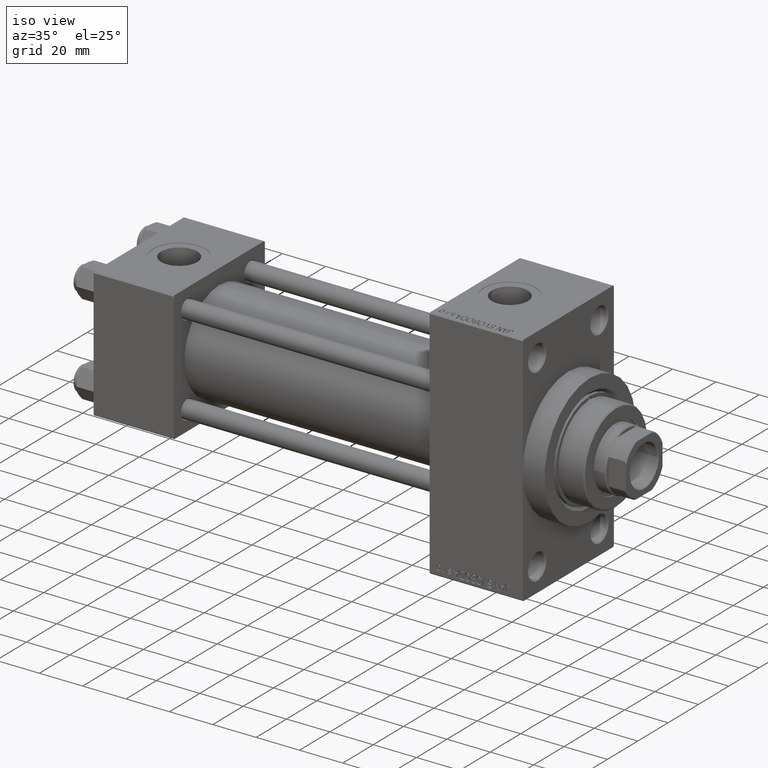
[diagram: clean part render]
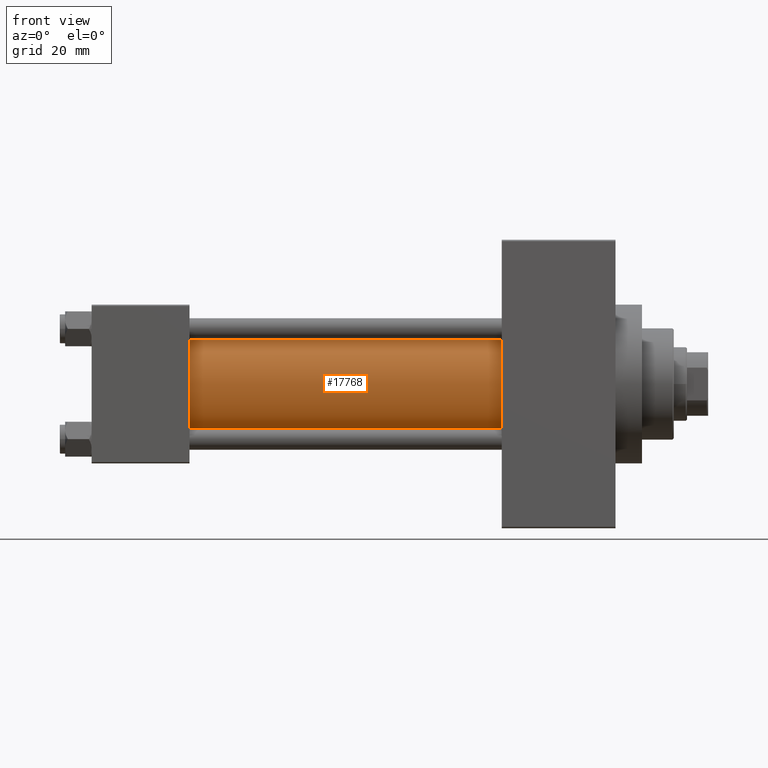
[diagram: tour spotlight — one face highlighted and labeled with its STEP entity id]
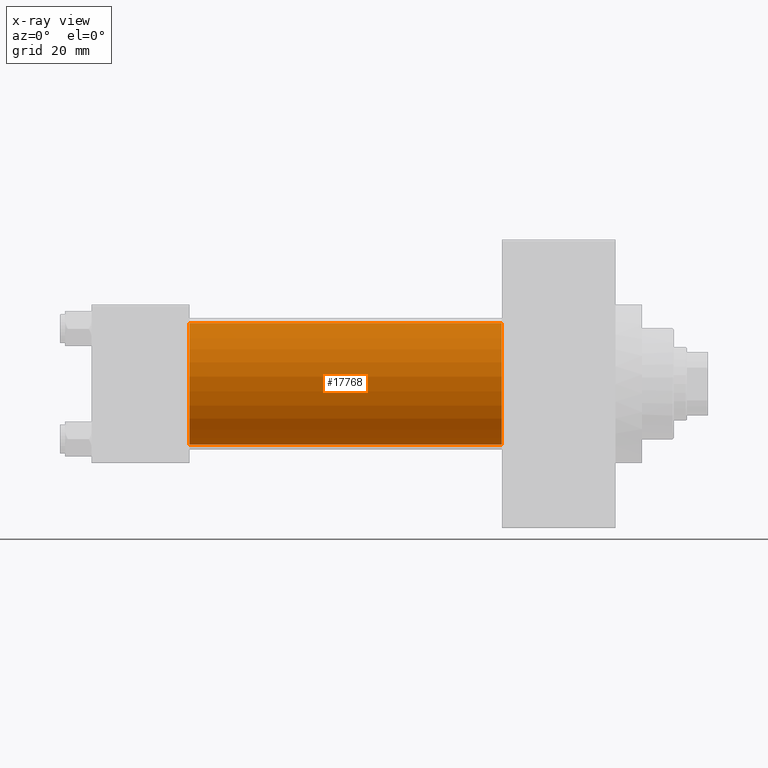
[diagram: x-ray of the same camera — body ghosted, this tour face saturated]
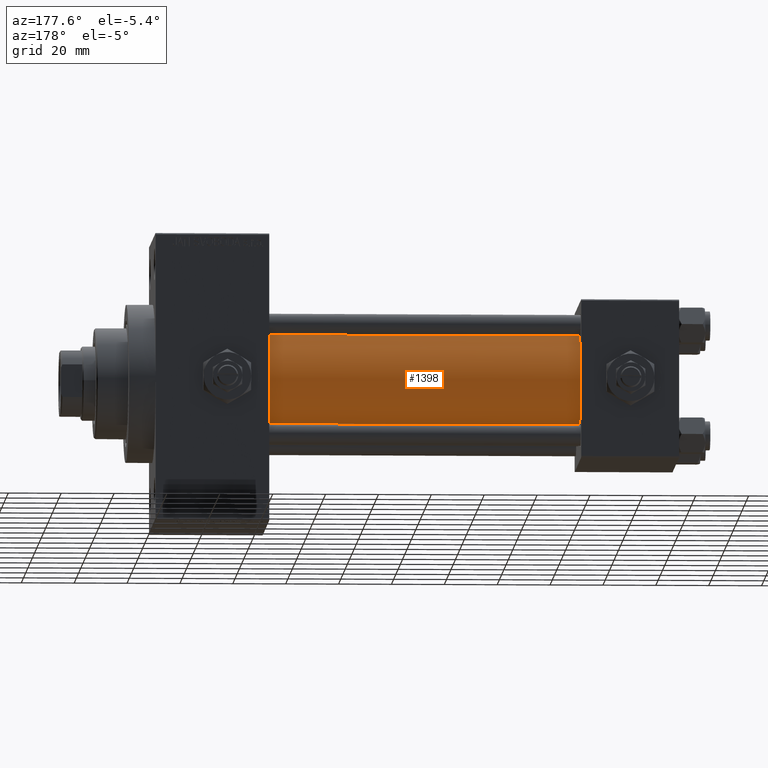
[diagram: tour spotlight — one face highlighted and labeled with its STEP entity id]
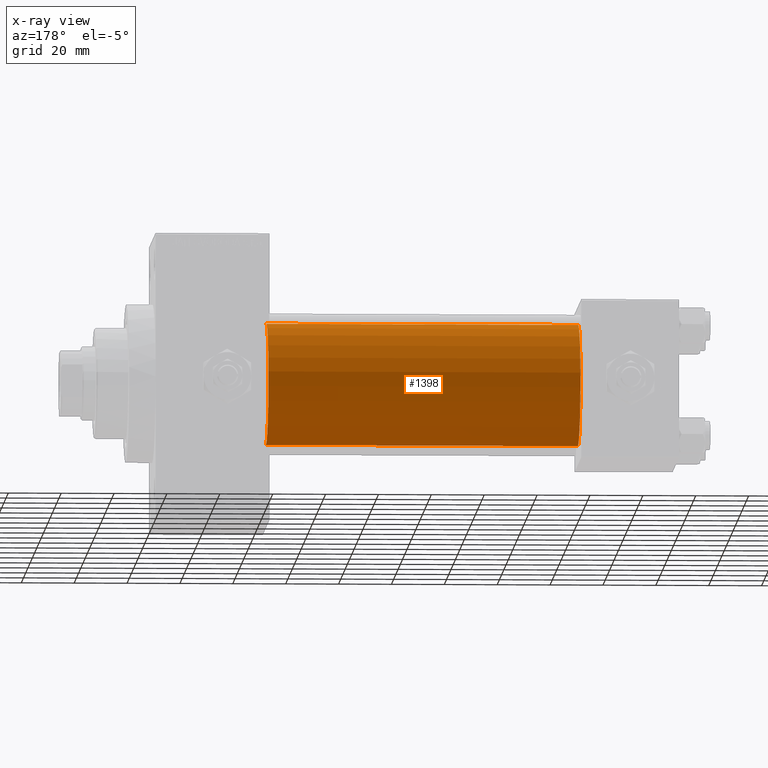
[diagram: x-ray of the same camera — body ghosted, this tour face saturated]
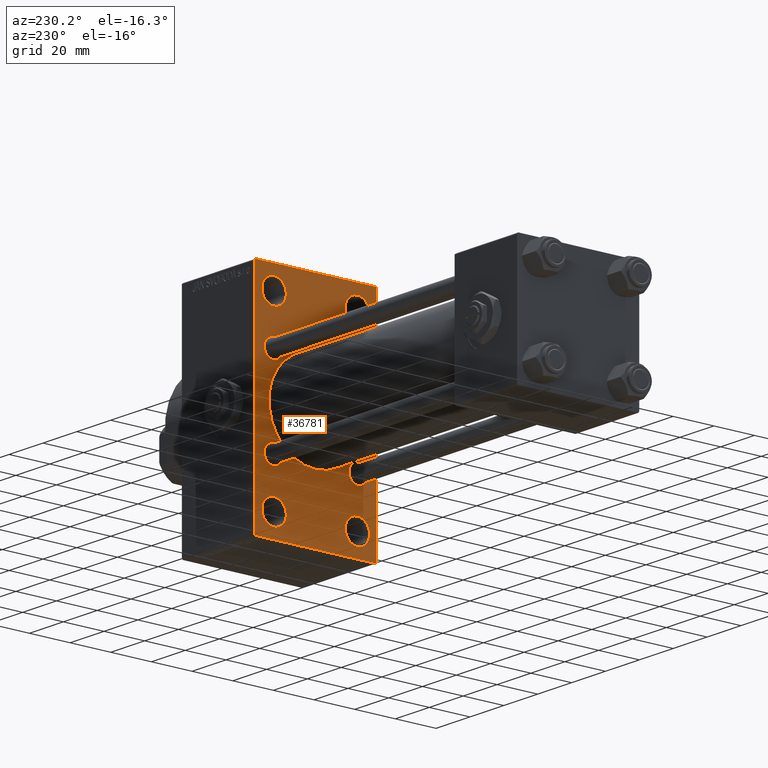
[diagram: tour spotlight — one face highlighted and labeled with its STEP entity id]
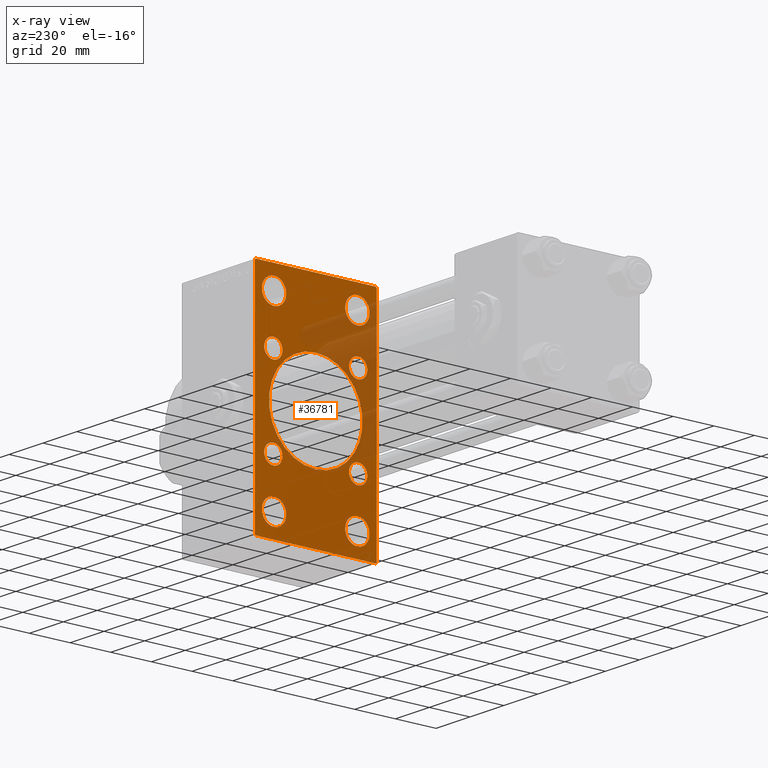
[diagram: x-ray of the same camera — body ghosted, this tour face saturated]
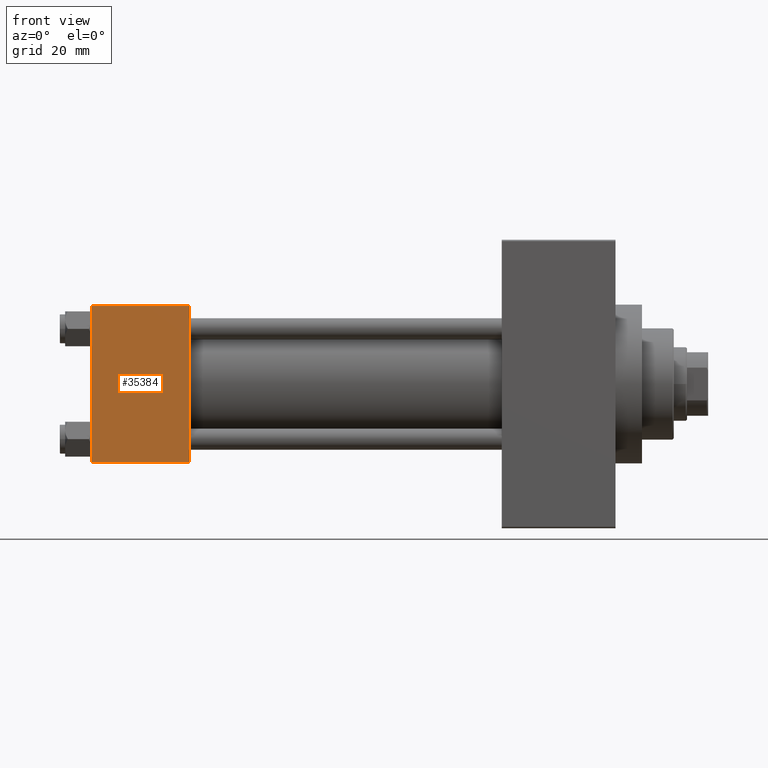
[diagram: tour spotlight — one face highlighted and labeled with its STEP entity id]
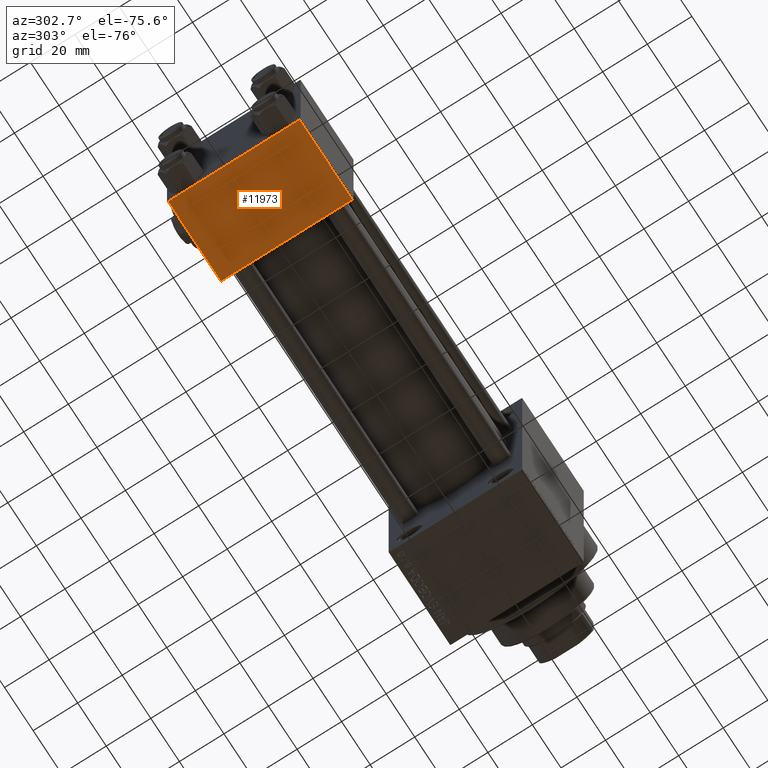
[diagram: tour spotlight — one face highlighted and labeled with its STEP entity id]
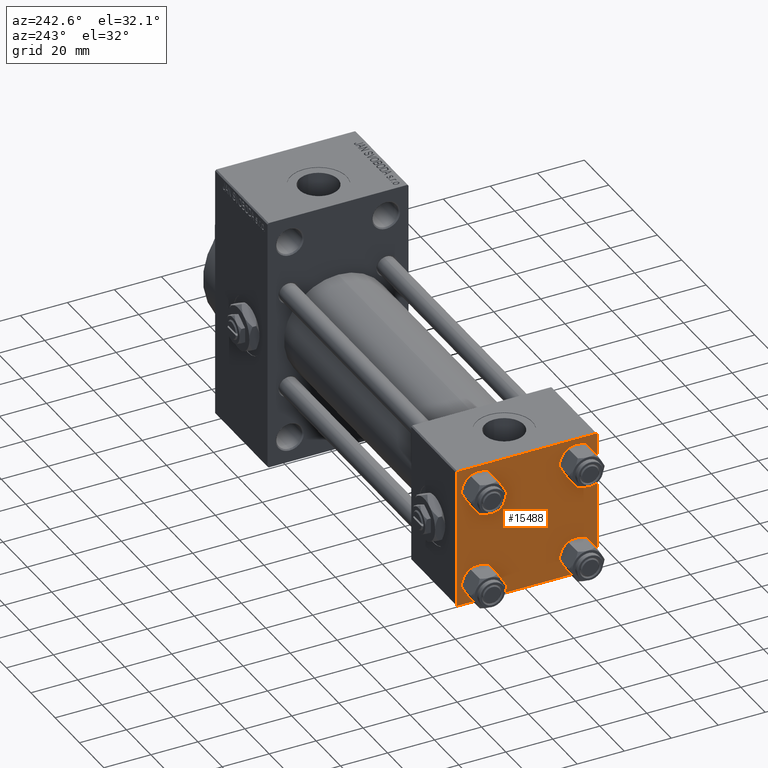
[diagram: tour spotlight — one face highlighted and labeled with its STEP entity id]
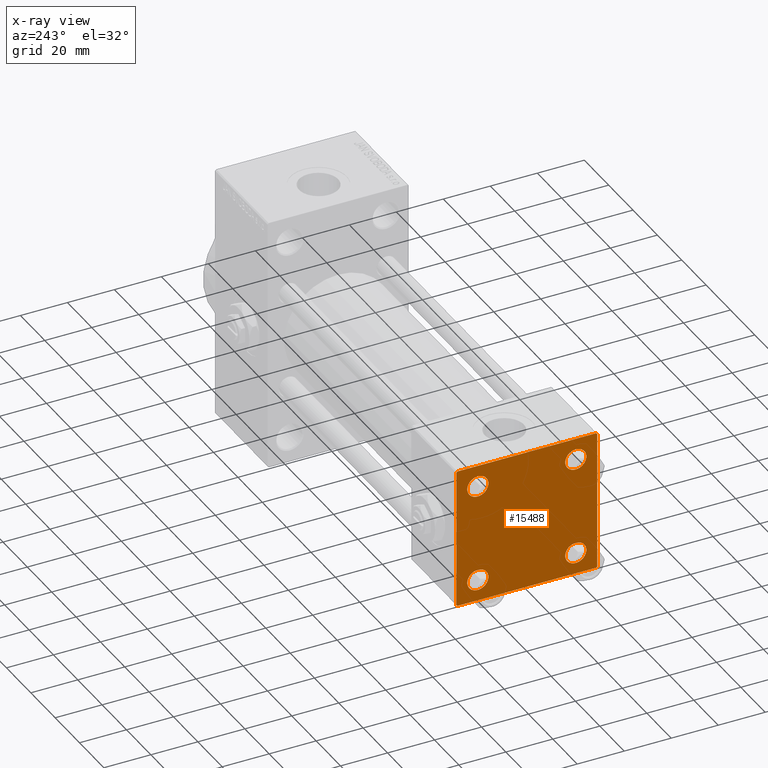
[diagram: x-ray of the same camera — body ghosted, this tour face saturated]
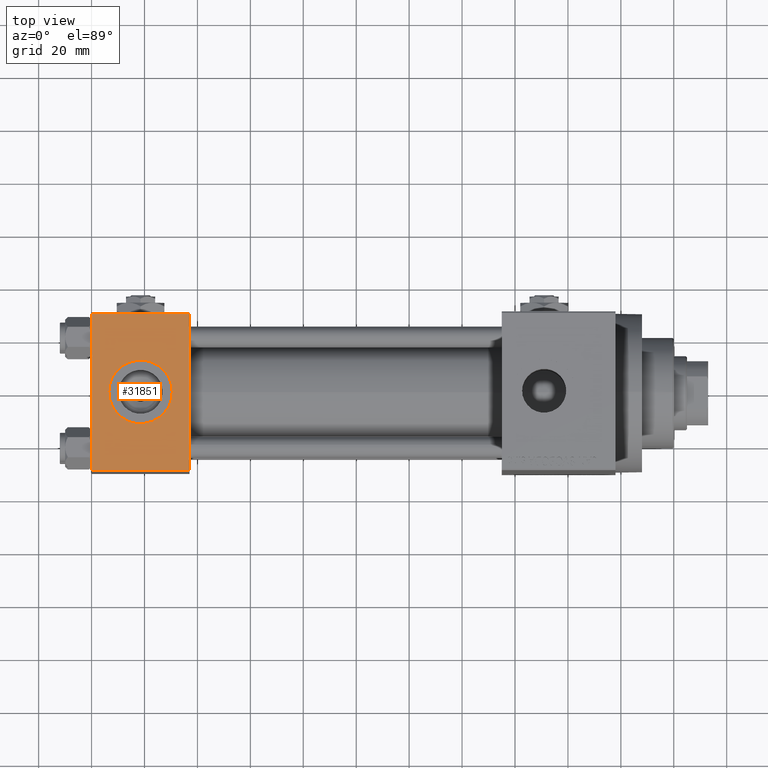
[diagram: tour spotlight — one face highlighted and labeled with its STEP entity id]
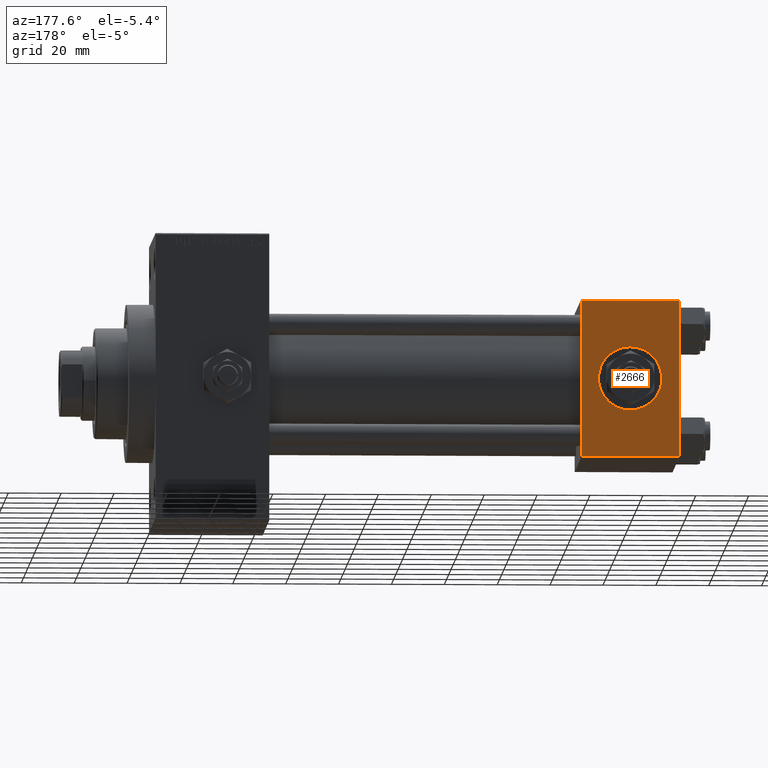
[diagram: tour spotlight — one face highlighted and labeled with its STEP entity id]
A machine part: a face-by-face anatomy tour. The part has 1215 B-rep faces; the first image is the clean iso view, then the 8 largest visible faces are spotlighted one at a time (largest first), each with its STEP entity span.

Face 1 — front view, entity #17768. An x-ray twin of the same camera follows (body ghosted, this face saturated) — the face is partly hidden behind the body. In plain terms, the highlighted cylindrical surface (partial cylindrical patch) has radius 23 mm, axis along (-1, -0, -0).
Definition (entity closure, byte-faithful):
#1389 = DIRECTION ( 'NONE',  ( 0.000000000000000000, 0.000000000000000000, 1.000000000000000000 ) ) ;
#2896 = EDGE_CURVE ( 'NONE', #16188, #31772, #11334, .T. ) ;
#4252 = CARTESIAN_POINT ( 'NONE',  ( 155.0000000000000000, -2.602085213965210642E-15, 0.000000000000000000 ) ) ;
#5827 = CARTESIAN_POINT ( 'NONE',  ( 37.00000000000000711, -2.602085213965210642E-15, 23.00000000000000000 ) ) ;
#6215 = ORIENTED_EDGE ( 'NONE', *, *, #2896, .F. ) ;
#7941 = ORIENTED_EDGE ( 'NONE', *, *, #14003, .F. ) ;
#9439 = CARTESIAN_POINT ( 'NONE',  ( 155.0000000000000000, -2.602085213965210642E-15, 0.000000000000000000 ) ) ;
#9944 = DIRECTION ( 'NONE',  ( 1.000000000000000000, 0.000000000000000000, 0.000000000000000000 ) ) ;
#10249 = EDGE_CURVE ( 'NONE', #16188, #10706, #43560, .T. ) ;
#10285 = VECTOR ( 'NONE', #12951, 1000.000000000000000 ) ;
#10706 = VERTEX_POINT ( 'NONE', #5827 ) ;
#11334 = CIRCLE ( 'NONE', #12111, 23.00000000000000000 ) ;
#12111 = AXIS2_PLACEMENT_3D ( 'NONE', #9439, #9944, #24736 ) ;
#12951 = DIRECTION ( 'NONE',  ( -1.000000000000000000, -0.000000000000000000, -0.000000000000000000 ) ) ;
#13278 = EDGE_CURVE ( 'NONE', #10706, #45226, #25610, .T. ) ;
#14003 = EDGE_CURVE ( 'NONE', #31772, #45226, #26714, .T. ) ;
#15529 = CYLINDRICAL_SURFACE ( 'NONE', #24024, 23.00000000000000000 ) ;
#16188 = VERTEX_POINT ( 'NONE', #32518 ) ;
#16479 = ORIENTED_EDGE ( 'NONE', *, *, #10249, .T. ) ;
#17768 = ADVANCED_FACE ( 'NONE', ( #24713 ), #15529, .T. ) ;
#24024 = AXIS2_PLACEMENT_3D ( 'NONE', #4252, #34338, #1389 ) ;
#24273 = CARTESIAN_POINT ( 'NONE',  ( 37.00000000000000711, 2.146024240737016609E-16, -23.00000000000000000 ) ) ;
#24713 = FACE_OUTER_BOUND ( 'NONE', #31169, .T. ) ;
#24736 = DIRECTION ( 'NONE',  ( 0.000000000000000000, 0.000000000000000000, -1.000000000000000000 ) ) ;
#25610 = CIRCLE ( 'NONE', #43211, 23.00000000000000000 ) ;
#26714 = LINE ( 'NONE', #49012, #35227 ) ;
#30225 = DIRECTION ( 'NONE',  ( -1.000000000000000000, -0.000000000000000000, -0.000000000000000000 ) ) ;
#30530 = DIRECTION ( 'NONE',  ( 1.000000000000000000, -0.000000000000000000, 0.000000000000000000 ) ) ;
#31169 = EDGE_LOOP ( 'NONE', ( #7941, #6215, #16479, #39015 ) ) ;
#31772 = VERTEX_POINT ( 'NONE', #33189 ) ;
#32518 = CARTESIAN_POINT ( 'NONE',  ( 155.0000000000000000, -2.602085213965210642E-15, 23.00000000000000000 ) ) ;
#33189 = CARTESIAN_POINT ( 'NONE',  ( 155.0000000000000000, 2.146024240737016609E-16, -23.00000000000000000 ) ) ;
#34338 = DIRECTION ( 'NONE',  ( -1.000000000000000000, -0.000000000000000000, -0.000000000000000000 ) ) ;
#35227 = VECTOR ( 'NONE', #30225, 1000.000000000000000 ) ;
#39015 = ORIENTED_EDGE ( 'NONE', *, *, #13278, .T. ) ;
#43211 = AXIS2_PLACEMENT_3D ( 'NONE', #45817, #30530, #48824 ) ;
#43560 = LINE ( 'NONE', #47309, #10285 ) ;
#45226 = VERTEX_POINT ( 'NONE', #24273 ) ;
#45817 = CARTESIAN_POINT ( 'NONE',  ( 37.00000000000000711, -2.602085213965210642E-15, 0.000000000000000000 ) ) ;
#47309 = CARTESIAN_POINT ( 'NONE',  ( 155.0000000000000000, -2.602085213965210642E-15, 23.00000000000000000 ) ) ;
#48824 = DIRECTION ( 'NONE',  ( 0.000000000000000000, 0.000000000000000000, 1.000000000000000000 ) ) ;
#49012 = CARTESIAN_POINT ( 'NONE',  ( 155.0000000000000000, 2.146024240737016609E-16, -23.00000000000000000 ) ) ;

Face 2 — auxiliary view, entity #1398. An x-ray twin of the same camera follows (body ghosted, this face saturated) — the face is partly hidden behind the body. In plain terms, the highlighted cylindrical surface (partial cylindrical patch) has radius 23 mm, axis along (-1, -0, -0).
Definition (entity closure, byte-faithful):
#1398 = ADVANCED_FACE ( 'NONE', ( #2574 ), #47718, .T. ) ;
#2514 = CIRCLE ( 'NONE', #14538, 23.00000000000000000 ) ;
#2574 = FACE_OUTER_BOUND ( 'NONE', #5432, .T. ) ;
#2638 = CIRCLE ( 'NONE', #13840, 23.00000000000000000 ) ;
#5432 = EDGE_LOOP ( 'NONE', ( #42049, #15370, #8111, #49632 ) ) ;
#5827 = CARTESIAN_POINT ( 'NONE',  ( 37.00000000000000711, -2.602085213965210642E-15, 23.00000000000000000 ) ) ;
#8111 = ORIENTED_EDGE ( 'NONE', *, *, #38076, .T. ) ;
#9411 = DIRECTION ( 'NONE',  ( 1.000000000000000000, 0.000000000000000000, 0.000000000000000000 ) ) ;
#10249 = EDGE_CURVE ( 'NONE', #16188, #10706, #43560, .T. ) ;
#10285 = VECTOR ( 'NONE', #12951, 1000.000000000000000 ) ;
#10706 = VERTEX_POINT ( 'NONE', #5827 ) ;
#12951 = DIRECTION ( 'NONE',  ( -1.000000000000000000, -0.000000000000000000, -0.000000000000000000 ) ) ;
#13840 = AXIS2_PLACEMENT_3D ( 'NONE', #42992, #47234, #39217 ) ;
#14003 = EDGE_CURVE ( 'NONE', #31772, #45226, #26714, .T. ) ;
#14538 = AXIS2_PLACEMENT_3D ( 'NONE', #43764, #9411, #24710 ) ;
#15370 = ORIENTED_EDGE ( 'NONE', *, *, #14003, .T. ) ;
#16188 = VERTEX_POINT ( 'NONE', #32518 ) ;
#17623 = DIRECTION ( 'NONE',  ( -1.000000000000000000, -0.000000000000000000, -0.000000000000000000 ) ) ;
#20946 = EDGE_CURVE ( 'NONE', #31772, #16188, #2514, .T. ) ;
#24273 = CARTESIAN_POINT ( 'NONE',  ( 37.00000000000000711, 2.146024240737016609E-16, -23.00000000000000000 ) ) ;
#24710 = DIRECTION ( 'NONE',  ( 0.000000000000000000, 0.000000000000000000, -1.000000000000000000 ) ) ;
#25161 = CARTESIAN_POINT ( 'NONE',  ( 155.0000000000000000, -2.602085213965210642E-15, 0.000000000000000000 ) ) ;
#25400 = DIRECTION ( 'NONE',  ( 0.000000000000000000, 0.000000000000000000, 1.000000000000000000 ) ) ;
#26714 = LINE ( 'NONE', #49012, #35227 ) ;
#30225 = DIRECTION ( 'NONE',  ( -1.000000000000000000, -0.000000000000000000, -0.000000000000000000 ) ) ;
#31772 = VERTEX_POINT ( 'NONE', #33189 ) ;
#32518 = CARTESIAN_POINT ( 'NONE',  ( 155.0000000000000000, -2.602085213965210642E-15, 23.00000000000000000 ) ) ;
#33189 = CARTESIAN_POINT ( 'NONE',  ( 155.0000000000000000, 2.146024240737016609E-16, -23.00000000000000000 ) ) ;
#35227 = VECTOR ( 'NONE', #30225, 1000.000000000000000 ) ;
#38076 = EDGE_CURVE ( 'NONE', #45226, #10706, #2638, .T. ) ;
#39217 = DIRECTION ( 'NONE',  ( 0.000000000000000000, 0.000000000000000000, 1.000000000000000000 ) ) ;
#42049 = ORIENTED_EDGE ( 'NONE', *, *, #20946, .F. ) ;
#42992 = CARTESIAN_POINT ( 'NONE',  ( 37.00000000000000711, -2.602085213965210642E-15, 0.000000000000000000 ) ) ;
#43560 = LINE ( 'NONE', #47309, #10285 ) ;
#43764 = CARTESIAN_POINT ( 'NONE',  ( 155.0000000000000000, -2.602085213965210642E-15, 0.000000000000000000 ) ) ;
#45226 = VERTEX_POINT ( 'NONE', #24273 ) ;
#47234 = DIRECTION ( 'NONE',  ( 1.000000000000000000, -0.000000000000000000, 0.000000000000000000 ) ) ;
#47309 = CARTESIAN_POINT ( 'NONE',  ( 155.0000000000000000, -2.602085213965210642E-15, 23.00000000000000000 ) ) ;
#47718 = CYLINDRICAL_SURFACE ( 'NONE', #48135, 23.00000000000000000 ) ;
#48135 = AXIS2_PLACEMENT_3D ( 'NONE', #25161, #17623, #25400 ) ;
#49012 = CARTESIAN_POINT ( 'NONE',  ( 155.0000000000000000, 2.146024240737016609E-16, -23.00000000000000000 ) ) ;
#49632 = ORIENTED_EDGE ( 'NONE', *, *, #10249, .F. ) ;

Face 3 — auxiliary view, entity #36781. An x-ray twin of the same camera follows (body ghosted, this face saturated) — the face is partly hidden behind the body. In plain terms, the highlighted planar face has unit normal (-1, 0, 0).
Definition (entity closure, byte-faithful):
#1087 = CARTESIAN_POINT ( 'NONE',  ( 155.0000000000000000, 29.99999999999999645, 54.49999999999999289 ) ) ;
#1168 = EDGE_CURVE ( 'NONE', #44868, #48209, #12125, .T. ) ;
#2207 = FACE_BOUND ( 'NONE', #44577, .T. ) ;
#2419 = DIRECTION ( 'NONE',  ( 1.000000000000000000, -0.000000000000000000, 0.000000000000000000 ) ) ;
#2514 = CIRCLE ( 'NONE', #14538, 23.00000000000000000 ) ;
#2599 = EDGE_CURVE ( 'NONE', #41757, #38482, #46555, .T. ) ;
#2602 = CARTESIAN_POINT ( 'NONE',  ( 155.0000000000000000, 20.50000000000000000, -43.50000000000000000 ) ) ;
#2799 = CIRCLE ( 'NONE', #6811, 5.999999999999921840 ) ;
#2896 = EDGE_CURVE ( 'NONE', #16188, #31772, #11334, .T. ) ;
#3336 = DIRECTION ( 'NONE',  ( 1.000000000000000000, -0.000000000000000000, 0.000000000000000000 ) ) ;
#3558 = VERTEX_POINT ( 'NONE', #34550 ) ;
#3682 = ORIENTED_EDGE ( 'NONE', *, *, #16778, .T. ) ;
#3856 = CARTESIAN_POINT ( 'NONE',  ( 155.0000000000000000, 20.84999999999999787, 16.34999999999999432 ) ) ;
#3914 = CARTESIAN_POINT ( 'NONE',  ( 155.0000000000000000, 20.50000000000000000, -37.50000000000007816 ) ) ;
#4071 = CARTESIAN_POINT ( 'NONE',  ( 155.0000000000000000, 20.84999999999999787, -25.35000000000000853 ) ) ;
#4236 = ORIENTED_EDGE ( 'NONE', *, *, #31480, .T. ) ;
#4589 = EDGE_CURVE ( 'NONE', #21998, #46031, #4881, .T. ) ;
#4881 = CIRCLE ( 'NONE', #7290, 4.500000000000007105 ) ;
#4938 = VECTOR ( 'NONE', #35731, 1000.000000000000000 ) ;
#5079 = AXIS2_PLACEMENT_3D ( 'NONE', #35737, #24459, #28716 ) ;
#5098 = DIRECTION ( 'NONE',  ( 0.000000000000000000, 0.000000000000000000, -1.000000000000000000 ) ) ;
#5177 = DIRECTION ( 'NONE',  ( 1.000000000000000000, -0.000000000000000000, 0.000000000000000000 ) ) ;
#5209 = LINE ( 'NONE', #28772, #39137 ) ;
#5211 = DIRECTION ( 'NONE',  ( 0.000000000000000000, -1.000000000000000000, -1.156482317317871478E-16 ) ) ;
#5341 = CARTESIAN_POINT ( 'NONE',  ( 155.0000000000000000, -30.00000000000000000, 54.50000000000000000 ) ) ;
#5355 = CARTESIAN_POINT ( 'NONE',  ( 155.0000000000000000, 29.49999999999996803, -54.49999999999999289 ) ) ;
#5936 = CARTESIAN_POINT ( 'NONE',  ( 155.0000000000000000, -42.00000000000051159, -41.99999999999905498 ) ) ;
#5982 = FACE_BOUND ( 'NONE', #33880, .T. ) ;
#6070 = DIRECTION ( 'NONE',  ( 1.000000000000000000, -0.000000000000000000, 0.000000000000000000 ) ) ;
#6700 = CARTESIAN_POINT ( 'NONE',  ( 155.0000000000000000, -20.50000000000000000, 43.50000000000000000 ) ) ;
#6715 = ORIENTED_EDGE ( 'NONE', *, *, #30981, .T. ) ;
#6737 = EDGE_CURVE ( 'NONE', #43035, #24757, #6934, .T. ) ;
#6811 = AXIS2_PLACEMENT_3D ( 'NONE', #33619, #18575, #48905 ) ;
#6869 = DIRECTION ( 'NONE',  ( 0.000000000000000000, 0.000000000000000000, 1.000000000000000000 ) ) ;
#6934 = CIRCLE ( 'NONE', #48591, 5.999999999999921840 ) ;
#7048 = CARTESIAN_POINT ( 'NONE',  ( 155.0000000000000000, 20.50000000000000000, 49.49999999999992184 ) ) ;
#7290 = AXIS2_PLACEMENT_3D ( 'NONE', #21250, #2419, #17477 ) ;
#7325 = VERTEX_POINT ( 'NONE', #7459 ) ;
#7402 = ORIENTED_EDGE ( 'NONE', *, *, #9953, .T. ) ;
#7422 = ORIENTED_EDGE ( 'NONE', *, *, #9627, .T. ) ;
#7459 = CARTESIAN_POINT ( 'NONE',  ( 155.0000000000000000, -20.50000000000000000, 49.49999999999992184 ) ) ;
#7524 = CIRCLE ( 'NONE', #32362, 4.500000000000007105 ) ;
#8071 = CIRCLE ( 'NONE', #36083, 4.500000000000007105 ) ;
#8177 = CARTESIAN_POINT ( 'NONE',  ( 155.0000000000000000, 41.99999999999915445, -42.00000000000149214 ) ) ;
#8704 = EDGE_CURVE ( 'NONE', #28641, #22255, #21433, .T. ) ;
#8836 = VECTOR ( 'NONE', #47107, 1000.000000000000114 ) ;
#9183 = CARTESIAN_POINT ( 'NONE',  ( 155.0000000000000000, -20.84999999999999076, 20.85000000000000497 ) ) ;
#9411 = DIRECTION ( 'NONE',  ( 1.000000000000000000, 0.000000000000000000, 0.000000000000000000 ) ) ;
#9439 = CARTESIAN_POINT ( 'NONE',  ( 155.0000000000000000, -2.602085213965210642E-15, 0.000000000000000000 ) ) ;
#9480 = DIRECTION ( 'NONE',  ( -1.000000000000000000, 0.000000000000000000, -0.000000000000000000 ) ) ;
#9526 = ORIENTED_EDGE ( 'NONE', *, *, #28932, .T. ) ;
#9575 = EDGE_LOOP ( 'NONE', ( #23067, #22301 ) ) ;
#9627 = EDGE_CURVE ( 'NONE', #20436, #27938, #24681, .T. ) ;
#9656 = ORIENTED_EDGE ( 'NONE', *, *, #6737, .T. ) ;
#9937 = DIRECTION ( 'NONE',  ( 0.000000000000000000, 0.000000000000000000, 1.000000000000000000 ) ) ;
#9944 = DIRECTION ( 'NONE',  ( 1.000000000000000000, 0.000000000000000000, 0.000000000000000000 ) ) ;
#9953 = EDGE_CURVE ( 'NONE', #46031, #21998, #21472, .T. ) ;
#10160 = DIRECTION ( 'NONE',  ( 0.000000000000000000, 0.000000000000000000, 1.000000000000000000 ) ) ;
#10170 = CARTESIAN_POINT ( 'NONE',  ( 155.0000000000000000, -20.50000000000000000, -43.50000000000000000 ) ) ;
#10320 = EDGE_LOOP ( 'NONE', ( #13196, #9526 ) ) ;
#10576 = VECTOR ( 'NONE', #33958, 1000.000000000000114 ) ;
#11316 = EDGE_CURVE ( 'NONE', #16676, #3558, #5209, .T. ) ;
#11334 = CIRCLE ( 'NONE', #12111, 23.00000000000000000 ) ;
#11558 = CARTESIAN_POINT ( 'NONE',  ( 155.0000000000000000, -20.84999999999999076, -20.85000000000000497 ) ) ;
#12111 = AXIS2_PLACEMENT_3D ( 'NONE', #9439, #9944, #24736 ) ;
#12125 = LINE ( 'NONE', #5341, #16833 ) ;
#12736 = FACE_BOUND ( 'NONE', #15335, .T. ) ;
#13196 = ORIENTED_EDGE ( 'NONE', *, *, #29699, .T. ) ;
#13242 = FACE_BOUND ( 'NONE', #10320, .T. ) ;
#13449 = LINE ( 'NONE', #5936, #24785 ) ;
#13678 = DIRECTION ( 'NONE',  ( 1.000000000000000000, -0.000000000000000000, 0.000000000000000000 ) ) ;
#13700 = ORIENTED_EDGE ( 'NONE', *, *, #2599, .T. ) ;
#14327 = VERTEX_POINT ( 'NONE', #4071 ) ;
#14435 = ORIENTED_EDGE ( 'NONE', *, *, #44099, .T. ) ;
#14538 = AXIS2_PLACEMENT_3D ( 'NONE', #43764, #9411, #24710 ) ;
#14915 = CARTESIAN_POINT ( 'NONE',  ( 155.0000000000000000, -20.84999999999999076, 25.35000000000001208 ) ) ;
#15042 = AXIS2_PLACEMENT_3D ( 'NONE', #47933, #6070, #21368 ) ;
#15335 = EDGE_LOOP ( 'NONE', ( #7422, #6715 ) ) ;
#15411 = CARTESIAN_POINT ( 'NONE',  ( 155.0000000000000000, 20.84999999999999787, -20.85000000000000142 ) ) ;
#15489 = CIRCLE ( 'NONE', #24304, 5.999999999999921840 ) ;
#16031 = DIRECTION ( 'NONE',  ( 0.000000000000000000, 0.000000000000000000, 1.000000000000000000 ) ) ;
#16188 = VERTEX_POINT ( 'NONE', #32518 ) ;
#16214 = EDGE_CURVE ( 'NONE', #39749, #48209, #13449, .T. ) ;
#16482 = LINE ( 'NONE', #31785, #49158 ) ;
#16661 = ORIENTED_EDGE ( 'NONE', *, *, #18714, .T. ) ;
#16676 = VERTEX_POINT ( 'NONE', #31790 ) ;
#16778 = EDGE_CURVE ( 'NONE', #7325, #43142, #34407, .T. ) ;
#16833 = VECTOR ( 'NONE', #5098, 1000.000000000000000 ) ;
#17004 = FACE_OUTER_BOUND ( 'NONE', #41857, .T. ) ;
#17008 = CIRCLE ( 'NONE', #41862, 5.999999999999921840 ) ;
#17477 = DIRECTION ( 'NONE',  ( 0.000000000000000000, 0.000000000000000000, 1.000000000000000000 ) ) ;
#17510 = FACE_BOUND ( 'NONE', #31516, .T. ) ;
#18575 = DIRECTION ( 'NONE',  ( 1.000000000000000000, -0.000000000000000000, 0.000000000000000000 ) ) ;
#18664 = CARTESIAN_POINT ( 'NONE',  ( 155.0000000000000000, -42.00000000000008527, 41.99999999999979394 ) ) ;
#18714 = EDGE_CURVE ( 'NONE', #16676, #24600, #31819, .T. ) ;
#19079 = EDGE_CURVE ( 'NONE', #38482, #41757, #8071, .T. ) ;
#19080 = DIRECTION ( 'NONE',  ( 0.000000000000000000, 0.000000000000000000, 1.000000000000000000 ) ) ;
#19462 = CARTESIAN_POINT ( 'NONE',  ( 155.0000000000000000, 29.99999999999999645, -53.99999999999999289 ) ) ;
#19473 = DIRECTION ( 'NONE',  ( 1.000000000000000000, -0.000000000000000000, 0.000000000000000000 ) ) ;
#19724 = DIRECTION ( 'NONE',  ( 0.000000000000000000, 0.000000000000000000, 1.000000000000000000 ) ) ;
#20210 = AXIS2_PLACEMENT_3D ( 'NONE', #28541, #9480, #20276 ) ;
#20276 = DIRECTION ( 'NONE',  ( -0.000000000000000000, 0.000000000000000000, 1.000000000000000000 ) ) ;
#20436 = VERTEX_POINT ( 'NONE', #22679 ) ;
#20769 = FACE_BOUND ( 'NONE', #9575, .T. ) ;
#20946 = EDGE_CURVE ( 'NONE', #31772, #16188, #2514, .T. ) ;
#21047 = CARTESIAN_POINT ( 'NONE',  ( 155.0000000000000000, -30.00000000000000000, -53.99999999999998579 ) ) ;
#21250 = CARTESIAN_POINT ( 'NONE',  ( 155.0000000000000000, -20.84999999999999076, -20.85000000000000497 ) ) ;
#21274 = CARTESIAN_POINT ( 'NONE',  ( 155.0000000000000000, 20.50000000000000000, 43.50000000000000000 ) ) ;
#21279 = FACE_BOUND ( 'NONE', #35168, .T. ) ;
#21368 = DIRECTION ( 'NONE',  ( 0.000000000000000000, 0.000000000000000000, 1.000000000000000000 ) ) ;
#21433 = CIRCLE ( 'NONE', #23831, 5.999999999999921840 ) ;
#21472 = CIRCLE ( 'NONE', #27870, 4.500000000000007105 ) ;
#21580 = VERTEX_POINT ( 'NONE', #24595 ) ;
#21998 = VERTEX_POINT ( 'NONE', #40621 ) ;
#22220 = EDGE_LOOP ( 'NONE', ( #44205, #4236 ) ) ;
#22255 = VERTEX_POINT ( 'NONE', #3914 ) ;
#22301 = ORIENTED_EDGE ( 'NONE', *, *, #8704, .T. ) ;
#22408 = EDGE_CURVE ( 'NONE', #33771, #24563, #23955, .T. ) ;
#22679 = CARTESIAN_POINT ( 'NONE',  ( 155.0000000000000000, 20.84999999999999787, 25.35000000000000853 ) ) ;
#23067 = ORIENTED_EDGE ( 'NONE', *, *, #32943, .T. ) ;
#23118 = EDGE_LOOP ( 'NONE', ( #45770, #9656 ) ) ;
#23530 = CARTESIAN_POINT ( 'NONE',  ( 155.0000000000000000, 20.50000000000000000, 37.50000000000007816 ) ) ;
#23546 = EDGE_CURVE ( 'NONE', #43142, #7325, #17008, .T. ) ;
#23831 = AXIS2_PLACEMENT_3D ( 'NONE', #2602, #3336, #6869 ) ;
#23955 = LINE ( 'NONE', #8177, #4938 ) ;
#24304 = AXIS2_PLACEMENT_3D ( 'NONE', #21274, #36561, #36055 ) ;
#24459 = DIRECTION ( 'NONE',  ( 1.000000000000000000, -0.000000000000000000, 0.000000000000000000 ) ) ;
#24563 = VERTEX_POINT ( 'NONE', #5355 ) ;
#24595 = CARTESIAN_POINT ( 'NONE',  ( 155.0000000000000000, 20.84999999999999787, -16.34999999999999432 ) ) ;
#24600 = VERTEX_POINT ( 'NONE', #28182 ) ;
#24602 = DIRECTION ( 'NONE',  ( 1.000000000000000000, -0.000000000000000000, 0.000000000000000000 ) ) ;
#24681 = CIRCLE ( 'NONE', #15042, 4.500000000000007105 ) ;
#24706 = CARTESIAN_POINT ( 'NONE',  ( 155.0000000000000000, -20.50000000000000000, 43.50000000000000000 ) ) ;
#24710 = DIRECTION ( 'NONE',  ( 0.000000000000000000, 0.000000000000000000, -1.000000000000000000 ) ) ;
#24736 = DIRECTION ( 'NONE',  ( 0.000000000000000000, 0.000000000000000000, -1.000000000000000000 ) ) ;
#24757 = VERTEX_POINT ( 'NONE', #38680 ) ;
#24785 = VECTOR ( 'NONE', #32759, 1000.000000000000000 ) ;
#24942 = AXIS2_PLACEMENT_3D ( 'NONE', #25058, #32319, #36078 ) ;
#25058 = CARTESIAN_POINT ( 'NONE',  ( 155.0000000000000000, -20.84999999999999076, 20.85000000000000497 ) ) ;
#25107 = CIRCLE ( 'NONE', #5079, 5.999999999999921840 ) ;
#25272 = DIRECTION ( 'NONE',  ( 0.000000000000000000, -1.000000000000000000, 1.156482317317871478E-16 ) ) ;
#26218 = VERTEX_POINT ( 'NONE', #23530 ) ;
#26846 = CARTESIAN_POINT ( 'NONE',  ( 155.0000000000000000, 41.99999999999998579, 41.99999999999998579 ) ) ;
#26871 = DIRECTION ( 'NONE',  ( 1.000000000000000000, -0.000000000000000000, 0.000000000000000000 ) ) ;
#27338 = DIRECTION ( 'NONE',  ( 1.000000000000000000, -0.000000000000000000, 0.000000000000000000 ) ) ;
#27870 = AXIS2_PLACEMENT_3D ( 'NONE', #11558, #26871, #19080 ) ;
#27938 = VERTEX_POINT ( 'NONE', #3856 ) ;
#28182 = CARTESIAN_POINT ( 'NONE',  ( 155.0000000000000000, 29.99999999999999645, 53.99999999999999289 ) ) ;
#28541 = CARTESIAN_POINT ( 'NONE',  ( 155.0000000000000000, 0.000000000000000000, 0.000000000000000000 ) ) ;
#28641 = VERTEX_POINT ( 'NONE', #47324 ) ;
#28716 = DIRECTION ( 'NONE',  ( 0.000000000000000000, 0.000000000000000000, 1.000000000000000000 ) ) ;
#28772 = CARTESIAN_POINT ( 'NONE',  ( 155.0000000000000000, 29.99999999999999645, 54.49999999999999289 ) ) ;
#28829 = CARTESIAN_POINT ( 'NONE',  ( 155.0000000000000000, -20.50000000000000000, 37.50000000000007816 ) ) ;
#28932 = EDGE_CURVE ( 'NONE', #26218, #32959, #25107, .T. ) ;
#29523 = DIRECTION ( 'NONE',  ( 0.000000000000000000, 0.000000000000000000, 1.000000000000000000 ) ) ;
#29699 = EDGE_CURVE ( 'NONE', #32959, #26218, #15489, .T. ) ;
#29817 = CARTESIAN_POINT ( 'NONE',  ( 155.0000000000000000, -20.50000000000000000, -49.49999999999992184 ) ) ;
#29891 = EDGE_CURVE ( 'NONE', #24757, #43035, #32321, .T. ) ;
#30726 = DIRECTION ( 'NONE',  ( 0.000000000000000000, 0.000000000000000000, 1.000000000000000000 ) ) ;
#30974 = DIRECTION ( 'NONE',  ( 1.000000000000000000, -0.000000000000000000, 0.000000000000000000 ) ) ;
#30981 = EDGE_CURVE ( 'NONE', #27938, #20436, #7524, .T. ) ;
#31432 = CARTESIAN_POINT ( 'NONE',  ( 155.0000000000000000, -29.50000000000000355, -54.50000000000000000 ) ) ;
#31480 = EDGE_CURVE ( 'NONE', #14327, #21580, #46810, .T. ) ;
#31516 = EDGE_LOOP ( 'NONE', ( #37508, #43811 ) ) ;
#31772 = VERTEX_POINT ( 'NONE', #33189 ) ;
#31785 = CARTESIAN_POINT ( 'NONE',  ( 155.0000000000000000, 29.99999999999999645, -54.49999999999999289 ) ) ;
#31790 = CARTESIAN_POINT ( 'NONE',  ( 155.0000000000000000, 29.49999999999999645, 54.49999999999999289 ) ) ;
#31808 = FACE_BOUND ( 'NONE', #22220, .T. ) ;
#31819 = LINE ( 'NONE', #26846, #8836 ) ;
#32302 = ORIENTED_EDGE ( 'NONE', *, *, #19079, .T. ) ;
#32319 = DIRECTION ( 'NONE',  ( 1.000000000000000000, -0.000000000000000000, 0.000000000000000000 ) ) ;
#32321 = CIRCLE ( 'NONE', #40354, 5.999999999999921840 ) ;
#32362 = AXIS2_PLACEMENT_3D ( 'NONE', #35889, #24602, #39897 ) ;
#32518 = CARTESIAN_POINT ( 'NONE',  ( 155.0000000000000000, -2.602085213965210642E-15, 23.00000000000000000 ) ) ;
#32759 = DIRECTION ( 'NONE',  ( 0.000000000000000000, -0.7071067811865352493, 0.7071067811865597852 ) ) ;
#32802 = FACE_BOUND ( 'NONE', #23118, .T. ) ;
#32943 = EDGE_CURVE ( 'NONE', #22255, #28641, #2799, .T. ) ;
#32959 = VERTEX_POINT ( 'NONE', #7048 ) ;
#32989 = DIRECTION ( 'NONE',  ( 0.000000000000000000, 0.000000000000000000, 1.000000000000000000 ) ) ;
#33189 = CARTESIAN_POINT ( 'NONE',  ( 155.0000000000000000, 2.146024240737016609E-16, -23.00000000000000000 ) ) ;
#33619 = CARTESIAN_POINT ( 'NONE',  ( 155.0000000000000000, 20.50000000000000000, -43.50000000000000000 ) ) ;
#33771 = VERTEX_POINT ( 'NONE', #19462 ) ;
#33880 = EDGE_LOOP ( 'NONE', ( #3682, #47036 ) ) ;
#33958 = DIRECTION ( 'NONE',  ( -0.000000000000000000, 0.7071067811865451302, 0.7071067811865500152 ) ) ;
#34407 = CIRCLE ( 'NONE', #44040, 5.999999999999921840 ) ;
#34550 = CARTESIAN_POINT ( 'NONE',  ( 155.0000000000000000, -29.49999999999997513, 54.50000000000000000 ) ) ;
#34790 = ORIENTED_EDGE ( 'NONE', *, *, #1168, .F. ) ;
#35168 = EDGE_LOOP ( 'NONE', ( #13700, #32302 ) ) ;
#35252 = CARTESIAN_POINT ( 'NONE',  ( 155.0000000000000000, -20.50000000000000000, -43.50000000000000000 ) ) ;
#35486 = AXIS2_PLACEMENT_3D ( 'NONE', #36076, #27338, #16031 ) ;
#35697 = LINE ( 'NONE', #1087, #38061 ) ;
#35731 = DIRECTION ( 'NONE',  ( -0.000000000000000000, -0.7071067811865672237, -0.7071067811865279218 ) ) ;
#35737 = CARTESIAN_POINT ( 'NONE',  ( 155.0000000000000000, 20.50000000000000000, 43.50000000000000000 ) ) ;
#35768 = ORIENTED_EDGE ( 'NONE', *, *, #11316, .F. ) ;
#35889 = CARTESIAN_POINT ( 'NONE',  ( 155.0000000000000000, 20.84999999999999787, 20.85000000000000142 ) ) ;
#36055 = DIRECTION ( 'NONE',  ( 0.000000000000000000, 0.000000000000000000, 1.000000000000000000 ) ) ;
#36076 = CARTESIAN_POINT ( 'NONE',  ( 155.0000000000000000, 20.84999999999999787, -20.85000000000000142 ) ) ;
#36078 = DIRECTION ( 'NONE',  ( 0.000000000000000000, 0.000000000000000000, 1.000000000000000000 ) ) ;
#36083 = AXIS2_PLACEMENT_3D ( 'NONE', #9183, #5177, #9937 ) ;
#36286 = EDGE_CURVE ( 'NONE', #44868, #3558, #46229, .T. ) ;
#36561 = DIRECTION ( 'NONE',  ( 1.000000000000000000, -0.000000000000000000, 0.000000000000000000 ) ) ;
#36781 = ADVANCED_FACE ( 'NONE', ( #5982, #32802, #20769, #13242, #21279, #12736, #31808, #2207, #17510, #17004 ), #43100, .T. ) ;
#37288 = DIRECTION ( 'NONE',  ( 1.000000000000000000, -0.000000000000000000, 0.000000000000000000 ) ) ;
#37508 = ORIENTED_EDGE ( 'NONE', *, *, #2896, .T. ) ;
#38061 = VECTOR ( 'NONE', #46978, 1000.000000000000000 ) ;
#38482 = VERTEX_POINT ( 'NONE', #46138 ) ;
#38669 = EDGE_CURVE ( 'NONE', #21580, #14327, #45088, .T. ) ;
#38680 = CARTESIAN_POINT ( 'NONE',  ( 155.0000000000000000, -20.50000000000000000, -37.50000000000007816 ) ) ;
#39137 = VECTOR ( 'NONE', #25272, 1000.000000000000000 ) ;
#39749 = VERTEX_POINT ( 'NONE', #31432 ) ;
#39897 = DIRECTION ( 'NONE',  ( 0.000000000000000000, 0.000000000000000000, 1.000000000000000000 ) ) ;
#40325 = ORIENTED_EDGE ( 'NONE', *, *, #36286, .T. ) ;
#40354 = AXIS2_PLACEMENT_3D ( 'NONE', #35252, #19473, #19724 ) ;
#40621 = CARTESIAN_POINT ( 'NONE',  ( 155.0000000000000000, -20.84999999999999076, -16.34999999999999787 ) ) ;
#40870 = ORIENTED_EDGE ( 'NONE', *, *, #46750, .T. ) ;
#40931 = CARTESIAN_POINT ( 'NONE',  ( 155.0000000000000000, -30.00000000000000000, 53.99999999999997158 ) ) ;
#41380 = ORIENTED_EDGE ( 'NONE', *, *, #16214, .T. ) ;
#41757 = VERTEX_POINT ( 'NONE', #14915 ) ;
#41857 = EDGE_LOOP ( 'NONE', ( #14435, #41380, #34790, #40325, #35768, #16661, #40870, #44312 ) ) ;
#41862 = AXIS2_PLACEMENT_3D ( 'NONE', #24706, #44014, #10160 ) ;
#42370 = CARTESIAN_POINT ( 'NONE',  ( 155.0000000000000000, -20.84999999999999076, -25.35000000000001208 ) ) ;
#43035 = VERTEX_POINT ( 'NONE', #29817 ) ;
#43100 = PLANE ( 'NONE',  #20210 ) ;
#43142 = VERTEX_POINT ( 'NONE', #28829 ) ;
#43764 = CARTESIAN_POINT ( 'NONE',  ( 155.0000000000000000, -2.602085213965210642E-15, 0.000000000000000000 ) ) ;
#43811 = ORIENTED_EDGE ( 'NONE', *, *, #20946, .T. ) ;
#44014 = DIRECTION ( 'NONE',  ( 1.000000000000000000, -0.000000000000000000, 0.000000000000000000 ) ) ;
#44040 = AXIS2_PLACEMENT_3D ( 'NONE', #6700, #37288, #29523 ) ;
#44099 = EDGE_CURVE ( 'NONE', #24563, #39749, #16482, .T. ) ;
#44205 = ORIENTED_EDGE ( 'NONE', *, *, #38669, .T. ) ;
#44312 = ORIENTED_EDGE ( 'NONE', *, *, #22408, .T. ) ;
#44577 = EDGE_LOOP ( 'NONE', ( #45346, #7402 ) ) ;
#44868 = VERTEX_POINT ( 'NONE', #40931 ) ;
#45088 = CIRCLE ( 'NONE', #35486, 4.500000000000007105 ) ;
#45346 = ORIENTED_EDGE ( 'NONE', *, *, #4589, .T. ) ;
#45770 = ORIENTED_EDGE ( 'NONE', *, *, #29891, .T. ) ;
#46031 = VERTEX_POINT ( 'NONE', #42370 ) ;
#46138 = CARTESIAN_POINT ( 'NONE',  ( 155.0000000000000000, -20.84999999999999076, 16.34999999999999787 ) ) ;
#46229 = LINE ( 'NONE', #18664, #10576 ) ;
#46555 = CIRCLE ( 'NONE', #24942, 4.500000000000007105 ) ;
#46750 = EDGE_CURVE ( 'NONE', #24600, #33771, #35697, .T. ) ;
#46810 = CIRCLE ( 'NONE', #49210, 4.500000000000007105 ) ;
#46978 = DIRECTION ( 'NONE',  ( 0.000000000000000000, 0.000000000000000000, -1.000000000000000000 ) ) ;
#47036 = ORIENTED_EDGE ( 'NONE', *, *, #23546, .T. ) ;
#47107 = DIRECTION ( 'NONE',  ( 0.000000000000000000, 0.7071067811865474617, -0.7071067811865474617 ) ) ;
#47324 = CARTESIAN_POINT ( 'NONE',  ( 155.0000000000000000, 20.50000000000000000, -49.49999999999992184 ) ) ;
#47933 = CARTESIAN_POINT ( 'NONE',  ( 155.0000000000000000, 20.84999999999999787, 20.85000000000000142 ) ) ;
#48209 = VERTEX_POINT ( 'NONE', #21047 ) ;
#48591 = AXIS2_PLACEMENT_3D ( 'NONE', #10170, #13678, #32989 ) ;
#48905 = DIRECTION ( 'NONE',  ( 0.000000000000000000, 0.000000000000000000, 1.000000000000000000 ) ) ;
#49158 = VECTOR ( 'NONE', #5211, 1000.000000000000000 ) ;
#49210 = AXIS2_PLACEMENT_3D ( 'NONE', #15411, #30974, #30726 ) ;

Face 4 — front view, entity #35384. In plain terms, the highlighted planar face has unit normal (0, 1, 0).
Definition (entity closure, byte-faithful):
#1440 = LINE ( 'NONE', #4721, #13989 ) ;
#1931 = VERTEX_POINT ( 'NONE', #5170 ) ;
#2315 = EDGE_CURVE ( 'NONE', #1931, #46652, #27099, .T. ) ;
#3626 = DIRECTION ( 'NONE',  ( 1.000000000000000000, 0.000000000000000000, 0.000000000000000000 ) ) ;
#3877 = CARTESIAN_POINT ( 'NONE',  ( 0.000000000000000000, -30.00000000000000000, 29.49999999999999289 ) ) ;
#4721 = CARTESIAN_POINT ( 'NONE',  ( 0.000000000000000000, -30.00000000000000000, 29.99999999999999289 ) ) ;
#4774 = VECTOR ( 'NONE', #42192, 1000.000000000000000 ) ;
#5170 = CARTESIAN_POINT ( 'NONE',  ( 37.00000000000000000, -30.00000000000000000, 29.49999999999999289 ) ) ;
#8571 = DIRECTION ( 'NONE',  ( 0.000000000000000000, -0.000000000000000000, 1.000000000000000000 ) ) ;
#9124 = VERTEX_POINT ( 'NONE', #36087 ) ;
#9301 = CARTESIAN_POINT ( 'NONE',  ( 37.00000000000000000, -30.00000000000000000, 29.99999999999999289 ) ) ;
#13007 = EDGE_CURVE ( 'NONE', #1931, #9124, #30399, .T. ) ;
#13989 = VECTOR ( 'NONE', #19776, 1000.000000000000000 ) ;
#14800 = CARTESIAN_POINT ( 'NONE',  ( 37.00000000000000000, -30.00000000000000000, 29.49999999999999289 ) ) ;
#18008 = EDGE_CURVE ( 'NONE', #41223, #9124, #45253, .T. ) ;
#18445 = VECTOR ( 'NONE', #3626, 1000.000000000000000 ) ;
#19776 = DIRECTION ( 'NONE',  ( 0.000000000000000000, 0.000000000000000000, -1.000000000000000000 ) ) ;
#24358 = FACE_OUTER_BOUND ( 'NONE', #48959, .T. ) ;
#27099 = LINE ( 'NONE', #14800, #44162 ) ;
#30399 = LINE ( 'NONE', #39581, #4774 ) ;
#31679 = ORIENTED_EDGE ( 'NONE', *, *, #13007, .F. ) ;
#32558 = ORIENTED_EDGE ( 'NONE', *, *, #2315, .T. ) ;
#34356 = DIRECTION ( 'NONE',  ( -1.000000000000000000, 0.000000000000000000, 0.000000000000000000 ) ) ;
#35384 = ADVANCED_FACE ( 'NONE', ( #24358 ), #39150, .F. ) ;
#36087 = CARTESIAN_POINT ( 'NONE',  ( 37.00000000000000000, -30.00000000000000000, -29.50000000000001776 ) ) ;
#39150 = PLANE ( 'NONE',  #40189 ) ;
#39581 = CARTESIAN_POINT ( 'NONE',  ( 37.00000000000000000, -30.00000000000000000, 29.99999999999999289 ) ) ;
#40189 = AXIS2_PLACEMENT_3D ( 'NONE', #9301, #43161, #8571 ) ;
#41223 = VERTEX_POINT ( 'NONE', #42623 ) ;
#42192 = DIRECTION ( 'NONE',  ( 0.000000000000000000, 0.000000000000000000, -1.000000000000000000 ) ) ;
#42623 = CARTESIAN_POINT ( 'NONE',  ( 0.000000000000000000, -30.00000000000000000, -29.50000000000001776 ) ) ;
#42971 = ORIENTED_EDGE ( 'NONE', *, *, #18008, .T. ) ;
#43161 = DIRECTION ( 'NONE',  ( -0.000000000000000000, 1.000000000000000000, 0.000000000000000000 ) ) ;
#44162 = VECTOR ( 'NONE', #34356, 1000.000000000000000 ) ;
#45177 = EDGE_CURVE ( 'NONE', #46652, #41223, #1440, .T. ) ;
#45253 = LINE ( 'NONE', #45994, #18445 ) ;
#45994 = CARTESIAN_POINT ( 'NONE',  ( 37.00000000000000000, -30.00000000000000000, -29.50000000000001776 ) ) ;
#46350 = ORIENTED_EDGE ( 'NONE', *, *, #45177, .T. ) ;
#46652 = VERTEX_POINT ( 'NONE', #3877 ) ;
#48959 = EDGE_LOOP ( 'NONE', ( #46350, #42971, #31679, #32558 ) ) ;

Face 5 — auxiliary view, entity #11973. In plain terms, the highlighted planar face has unit normal (0, 0, -1).
Definition (entity closure, byte-faithful):
#50 = EDGE_LOOP ( 'NONE', ( #36101, #25100, #19803, #18787 ) ) ;
#344 = CARTESIAN_POINT ( 'NONE',  ( 37.00000000000000000, 29.49999999999997868, -30.00000000000000000 ) ) ;
#2048 = DIRECTION ( 'NONE',  ( 0.000000000000000000, -1.000000000000000000, -1.156482317317871725E-16 ) ) ;
#2758 = CARTESIAN_POINT ( 'NONE',  ( 37.00000000000000000, 29.99999999999999289, -30.00000000000000000 ) ) ;
#2933 = CARTESIAN_POINT ( 'NONE',  ( 0.000000000000000000, -29.50000000000000000, -30.00000000000000711 ) ) ;
#5135 = EDGE_CURVE ( 'NONE', #32467, #16789, #44980, .T. ) ;
#6426 = VECTOR ( 'NONE', #37475, 1000.000000000000000 ) ;
#7368 = CARTESIAN_POINT ( 'NONE',  ( 0.000000000000000000, -29.50000000000001066, -30.00000000000000711 ) ) ;
#9777 = EDGE_CURVE ( 'NONE', #42994, #16789, #21115, .T. ) ;
#9788 = FACE_OUTER_BOUND ( 'NONE', #50, .T. ) ;
#11699 = CARTESIAN_POINT ( 'NONE',  ( 37.00000000000000000, 29.49999999999997868, -30.00000000000000000 ) ) ;
#11973 = ADVANCED_FACE ( 'NONE', ( #9788 ), #18057, .T. ) ;
#12805 = LINE ( 'NONE', #39647, #27290 ) ;
#16296 = CARTESIAN_POINT ( 'NONE',  ( 0.000000000000000000, 29.49999999999997868, -30.00000000000000000 ) ) ;
#16789 = VERTEX_POINT ( 'NONE', #2933 ) ;
#18001 = EDGE_CURVE ( 'NONE', #42994, #45356, #37720, .T. ) ;
#18057 = PLANE ( 'NONE',  #32767 ) ;
#18394 = EDGE_CURVE ( 'NONE', #45356, #32467, #12805, .T. ) ;
#18787 = ORIENTED_EDGE ( 'NONE', *, *, #5135, .T. ) ;
#19803 = ORIENTED_EDGE ( 'NONE', *, *, #18394, .T. ) ;
#21115 = LINE ( 'NONE', #36410, #37487 ) ;
#22173 = DIRECTION ( 'NONE',  ( -1.000000000000000000, 0.000000000000000000, 0.000000000000000000 ) ) ;
#25100 = ORIENTED_EDGE ( 'NONE', *, *, #18001, .T. ) ;
#27290 = VECTOR ( 'NONE', #28117, 1000.000000000000000 ) ;
#28117 = DIRECTION ( 'NONE',  ( 0.000000000000000000, -1.000000000000000000, -1.156482317317871725E-16 ) ) ;
#32467 = VERTEX_POINT ( 'NONE', #46076 ) ;
#32767 = AXIS2_PLACEMENT_3D ( 'NONE', #2758, #47648, #47898 ) ;
#36101 = ORIENTED_EDGE ( 'NONE', *, *, #9777, .F. ) ;
#36410 = CARTESIAN_POINT ( 'NONE',  ( 0.000000000000000000, 29.99999999999999289, -30.00000000000000000 ) ) ;
#37164 = VECTOR ( 'NONE', #22173, 1000.000000000000000 ) ;
#37475 = DIRECTION ( 'NONE',  ( 1.000000000000000000, 0.000000000000000000, 0.000000000000000000 ) ) ;
#37487 = VECTOR ( 'NONE', #2048, 1000.000000000000000 ) ;
#37720 = LINE ( 'NONE', #344, #6426 ) ;
#39647 = CARTESIAN_POINT ( 'NONE',  ( 37.00000000000000000, 29.99999999999999289, -30.00000000000000000 ) ) ;
#42994 = VERTEX_POINT ( 'NONE', #16296 ) ;
#44980 = LINE ( 'NONE', #7368, #37164 ) ;
#45356 = VERTEX_POINT ( 'NONE', #11699 ) ;
#46076 = CARTESIAN_POINT ( 'NONE',  ( 37.00000000000000000, -29.50000000000000000, -30.00000000000000711 ) ) ;
#47648 = DIRECTION ( 'NONE',  ( 0.000000000000000000, 1.156482317317871725E-16, -1.000000000000000000 ) ) ;
#47898 = DIRECTION ( 'NONE',  ( 0.000000000000000000, 1.000000000000000000, 1.156482317317871725E-16 ) ) ;

Face 6 — auxiliary view, entity #15488. An x-ray twin of the same camera follows (body ghosted, this face saturated) — the face is partly hidden behind the body. In plain terms, the highlighted planar face has unit normal (-1, 0, 0).
Definition (entity closure, byte-faithful):
#566 = VERTEX_POINT ( 'NONE', #30831 ) ;
#589 = DIRECTION ( 'NONE',  ( 1.000000000000000000, -0.000000000000000000, 0.000000000000000000 ) ) ;
#790 = VECTOR ( 'NONE', #3134, 1000.000000000000000 ) ;
#1440 = LINE ( 'NONE', #4721, #13989 ) ;
#1458 = DIRECTION ( 'NONE',  ( -0.000000000000000000, -0.7071067811865574537, -0.7071067811865376918 ) ) ;
#1541 = CARTESIAN_POINT ( 'NONE',  ( 0.000000000000000000, 29.74999999999999645, 29.74999999999999645 ) ) ;
#1647 = ORIENTED_EDGE ( 'NONE', *, *, #8918, .T. ) ;
#2048 = DIRECTION ( 'NONE',  ( 0.000000000000000000, -1.000000000000000000, -1.156482317317871725E-16 ) ) ;
#2375 = VERTEX_POINT ( 'NONE', #37447 ) ;
#2404 = CIRCLE ( 'NONE', #7130, 4.500000000000017764 ) ;
#2660 = VERTEX_POINT ( 'NONE', #21542 ) ;
#2710 = AXIS2_PLACEMENT_3D ( 'NONE', #15497, #49100, #14755 ) ;
#2933 = CARTESIAN_POINT ( 'NONE',  ( 0.000000000000000000, -29.50000000000000000, -30.00000000000000711 ) ) ;
#3134 = DIRECTION ( 'NONE',  ( 0.000000000000000000, 0.000000000000000000, -1.000000000000000000 ) ) ;
#3379 = ORIENTED_EDGE ( 'NONE', *, *, #15228, .T. ) ;
#3519 = CARTESIAN_POINT ( 'NONE',  ( 0.000000000000000000, -20.84999999999999076, -16.34999999999998721 ) ) ;
#3877 = CARTESIAN_POINT ( 'NONE',  ( 0.000000000000000000, -30.00000000000000000, 29.49999999999999289 ) ) ;
#3879 = VERTEX_POINT ( 'NONE', #21735 ) ;
#4375 = DIRECTION ( 'NONE',  ( 0.000000000000000000, 0.000000000000000000, 1.000000000000000000 ) ) ;
#4644 = ORIENTED_EDGE ( 'NONE', *, *, #40653, .T. ) ;
#4721 = CARTESIAN_POINT ( 'NONE',  ( 0.000000000000000000, -30.00000000000000000, 29.99999999999999289 ) ) ;
#4864 = CARTESIAN_POINT ( 'NONE',  ( 0.000000000000000000, -20.84999999999999076, -20.85000000000000497 ) ) ;
#5832 = CARTESIAN_POINT ( 'NONE',  ( 0.000000000000000000, -20.84999999999999076, 20.85000000000000497 ) ) ;
#7130 = AXIS2_PLACEMENT_3D ( 'NONE', #33433, #18141, #13388 ) ;
#7281 = CARTESIAN_POINT ( 'NONE',  ( 0.000000000000000000, 29.49999999999999289, 30.00000000000000000 ) ) ;
#7413 = VERTEX_POINT ( 'NONE', #20970 ) ;
#7825 = LINE ( 'NONE', #8984, #11464 ) ;
#8342 = FACE_BOUND ( 'NONE', #11663, .T. ) ;
#8660 = DIRECTION ( 'NONE',  ( 0.000000000000000000, 0.000000000000000000, 1.000000000000000000 ) ) ;
#8821 = DIRECTION ( 'NONE',  ( 0.000000000000000000, 0.7071067811865474617, -0.7071067811865474617 ) ) ;
#8918 = EDGE_CURVE ( 'NONE', #14581, #9654, #35901, .T. ) ;
#8967 = ORIENTED_EDGE ( 'NONE', *, *, #14036, .T. ) ;
#8984 = CARTESIAN_POINT ( 'NONE',  ( 0.000000000000000000, 29.74999999999957723, -29.75000000000040501 ) ) ;
#9477 = ORIENTED_EDGE ( 'NONE', *, *, #39330, .T. ) ;
#9654 = VERTEX_POINT ( 'NONE', #16844 ) ;
#9777 = EDGE_CURVE ( 'NONE', #42994, #16789, #21115, .T. ) ;
#10221 = VECTOR ( 'NONE', #8821, 1000.000000000000114 ) ;
#10260 = CARTESIAN_POINT ( 'NONE',  ( 0.000000000000000000, 20.84999999999999787, -25.35000000000001918 ) ) ;
#10365 = CARTESIAN_POINT ( 'NONE',  ( 0.000000000000000000, 20.84999999999999787, 16.34999999999998366 ) ) ;
#10775 = VECTOR ( 'NONE', #32869, 1000.000000000000114 ) ;
#11464 = VECTOR ( 'NONE', #1458, 999.9999999999998863 ) ;
#11534 = AXIS2_PLACEMENT_3D ( 'NONE', #4864, #27203, #11655 ) ;
#11556 = AXIS2_PLACEMENT_3D ( 'NONE', #31443, #589, #4375 ) ;
#11655 = DIRECTION ( 'NONE',  ( 0.000000000000000000, 0.000000000000000000, 1.000000000000000000 ) ) ;
#11663 = EDGE_LOOP ( 'NONE', ( #19915, #30600 ) ) ;
#11962 = AXIS2_PLACEMENT_3D ( 'NONE', #34920, #35158, #46932 ) ;
#13388 = DIRECTION ( 'NONE',  ( 0.000000000000000000, 0.000000000000000000, 1.000000000000000000 ) ) ;
#13989 = VECTOR ( 'NONE', #19776, 1000.000000000000000 ) ;
#14036 = EDGE_CURVE ( 'NONE', #9654, #2660, #22704, .T. ) ;
#14581 = VERTEX_POINT ( 'NONE', #7281 ) ;
#14755 = DIRECTION ( 'NONE',  ( 0.000000000000000000, 0.000000000000000000, 1.000000000000000000 ) ) ;
#15228 = EDGE_CURVE ( 'NONE', #3879, #43063, #2404, .T. ) ;
#15488 = ADVANCED_FACE ( 'NONE', ( #39161, #47423, #47173, #8342, #38922 ), #39656, .T. ) ;
#15497 = CARTESIAN_POINT ( 'NONE',  ( 0.000000000000000000, -20.84999999999999076, -20.85000000000000497 ) ) ;
#16296 = CARTESIAN_POINT ( 'NONE',  ( 0.000000000000000000, 29.49999999999997868, -30.00000000000000000 ) ) ;
#16789 = VERTEX_POINT ( 'NONE', #2933 ) ;
#16844 = CARTESIAN_POINT ( 'NONE',  ( 0.000000000000000000, 29.99999999999999289, 29.50000000000000000 ) ) ;
#17310 = CIRCLE ( 'NONE', #46937, 4.500000000000017764 ) ;
#18141 = DIRECTION ( 'NONE',  ( 1.000000000000000000, -0.000000000000000000, 0.000000000000000000 ) ) ;
#18748 = CIRCLE ( 'NONE', #2710, 4.500000000000017764 ) ;
#19418 = EDGE_LOOP ( 'NONE', ( #22882, #49270 ) ) ;
#19497 = AXIS2_PLACEMENT_3D ( 'NONE', #49541, #27243, #34018 ) ;
#19776 = DIRECTION ( 'NONE',  ( 0.000000000000000000, 0.000000000000000000, -1.000000000000000000 ) ) ;
#19915 = ORIENTED_EDGE ( 'NONE', *, *, #39439, .T. ) ;
#20131 = DIRECTION ( 'NONE',  ( 0.000000000000000000, 0.000000000000000000, 1.000000000000000000 ) ) ;
#20327 = EDGE_CURVE ( 'NONE', #32700, #2375, #44923, .T. ) ;
#20970 = CARTESIAN_POINT ( 'NONE',  ( 0.000000000000000000, -20.84999999999999076, 16.34999999999998721 ) ) ;
#21115 = LINE ( 'NONE', #36410, #37487 ) ;
#21168 = EDGE_LOOP ( 'NONE', ( #3379, #4644 ) ) ;
#21542 = CARTESIAN_POINT ( 'NONE',  ( 0.000000000000000000, 29.99999999999999289, -29.50000000000000000 ) ) ;
#21735 = CARTESIAN_POINT ( 'NONE',  ( 0.000000000000000000, 20.84999999999999787, -16.34999999999998366 ) ) ;
#22704 = LINE ( 'NONE', #45261, #790 ) ;
#22882 = ORIENTED_EDGE ( 'NONE', *, *, #30690, .T. ) ;
#23996 = EDGE_CURVE ( 'NONE', #2660, #42994, #7825, .T. ) ;
#24927 = VERTEX_POINT ( 'NONE', #32129 ) ;
#25308 = DIRECTION ( 'NONE',  ( 0.000000000000000000, -1.000000000000000000, -1.156482317317871725E-16 ) ) ;
#26024 = ORIENTED_EDGE ( 'NONE', *, *, #23996, .T. ) ;
#26531 = LINE ( 'NONE', #44411, #10775 ) ;
#27201 = ORIENTED_EDGE ( 'NONE', *, *, #49617, .T. ) ;
#27203 = DIRECTION ( 'NONE',  ( 1.000000000000000000, -0.000000000000000000, 0.000000000000000000 ) ) ;
#27243 = DIRECTION ( 'NONE',  ( 1.000000000000000000, -0.000000000000000000, 0.000000000000000000 ) ) ;
#27730 = CARTESIAN_POINT ( 'NONE',  ( 0.000000000000000000, 20.84999999999999787, 20.85000000000000142 ) ) ;
#28440 = VECTOR ( 'NONE', #41258, 1000.000000000000114 ) ;
#29064 = LINE ( 'NONE', #44602, #42043 ) ;
#29135 = CIRCLE ( 'NONE', #41958, 4.500000000000017764 ) ;
#30600 = ORIENTED_EDGE ( 'NONE', *, *, #20327, .T. ) ;
#30690 = EDGE_CURVE ( 'NONE', #38460, #24927, #40391, .T. ) ;
#30831 = CARTESIAN_POINT ( 'NONE',  ( 0.000000000000000000, -20.84999999999999076, 25.35000000000002274 ) ) ;
#31076 = EDGE_CURVE ( 'NONE', #46652, #34899, #26531, .T. ) ;
#31443 = CARTESIAN_POINT ( 'NONE',  ( 0.000000000000000000, 20.84999999999999787, -20.85000000000000142 ) ) ;
#31665 = EDGE_LOOP ( 'NONE', ( #8967, #26024, #48935, #32978, #47477, #43984, #37692, #1647 ) ) ;
#32129 = CARTESIAN_POINT ( 'NONE',  ( 0.000000000000000000, -20.84999999999999076, -25.35000000000002274 ) ) ;
#32329 = EDGE_CURVE ( 'NONE', #14581, #34899, #29064, .T. ) ;
#32700 = VERTEX_POINT ( 'NONE', #10365 ) ;
#32869 = DIRECTION ( 'NONE',  ( -0.000000000000000000, 0.7071067811865474617, 0.7071067811865474617 ) ) ;
#32905 = AXIS2_PLACEMENT_3D ( 'NONE', #36732, #36488, #40251 ) ;
#32978 = ORIENTED_EDGE ( 'NONE', *, *, #46690, .T. ) ;
#33433 = CARTESIAN_POINT ( 'NONE',  ( 0.000000000000000000, 20.84999999999999787, -20.85000000000000142 ) ) ;
#34018 = DIRECTION ( 'NONE',  ( 0.000000000000000000, 0.000000000000000000, 1.000000000000000000 ) ) ;
#34899 = VERTEX_POINT ( 'NONE', #45252 ) ;
#34920 = CARTESIAN_POINT ( 'NONE',  ( 0.000000000000000000, 0.000000000000000000, 0.000000000000000000 ) ) ;
#35158 = DIRECTION ( 'NONE',  ( -1.000000000000000000, 0.000000000000000000, -0.000000000000000000 ) ) ;
#35901 = LINE ( 'NONE', #1541, #10221 ) ;
#36410 = CARTESIAN_POINT ( 'NONE',  ( 0.000000000000000000, 29.99999999999999289, -30.00000000000000000 ) ) ;
#36488 = DIRECTION ( 'NONE',  ( 1.000000000000000000, -0.000000000000000000, 0.000000000000000000 ) ) ;
#36732 = CARTESIAN_POINT ( 'NONE',  ( 0.000000000000000000, 20.84999999999999787, 20.85000000000000142 ) ) ;
#37447 = CARTESIAN_POINT ( 'NONE',  ( 0.000000000000000000, 20.84999999999999787, 25.35000000000001918 ) ) ;
#37487 = VECTOR ( 'NONE', #2048, 1000.000000000000000 ) ;
#37692 = ORIENTED_EDGE ( 'NONE', *, *, #32329, .F. ) ;
#37895 = EDGE_LOOP ( 'NONE', ( #27201, #9477 ) ) ;
#38460 = VERTEX_POINT ( 'NONE', #3519 ) ;
#38922 = FACE_OUTER_BOUND ( 'NONE', #31665, .T. ) ;
#39161 = FACE_BOUND ( 'NONE', #37895, .T. ) ;
#39330 = EDGE_CURVE ( 'NONE', #7413, #566, #49124, .T. ) ;
#39433 = DIRECTION ( 'NONE',  ( 1.000000000000000000, -0.000000000000000000, 0.000000000000000000 ) ) ;
#39439 = EDGE_CURVE ( 'NONE', #2375, #32700, #29135, .T. ) ;
#39656 = PLANE ( 'NONE',  #11962 ) ;
#40251 = DIRECTION ( 'NONE',  ( 0.000000000000000000, 0.000000000000000000, 1.000000000000000000 ) ) ;
#40391 = CIRCLE ( 'NONE', #11534, 4.500000000000017764 ) ;
#40653 = EDGE_CURVE ( 'NONE', #43063, #3879, #49162, .T. ) ;
#41223 = VERTEX_POINT ( 'NONE', #42623 ) ;
#41258 = DIRECTION ( 'NONE',  ( 0.000000000000000000, -0.7071067811865474617, 0.7071067811865474617 ) ) ;
#41958 = AXIS2_PLACEMENT_3D ( 'NONE', #27730, #43020, #8660 ) ;
#42043 = VECTOR ( 'NONE', #25308, 1000.000000000000000 ) ;
#42623 = CARTESIAN_POINT ( 'NONE',  ( 0.000000000000000000, -30.00000000000000000, -29.50000000000001776 ) ) ;
#42994 = VERTEX_POINT ( 'NONE', #16296 ) ;
#43020 = DIRECTION ( 'NONE',  ( 1.000000000000000000, -0.000000000000000000, 0.000000000000000000 ) ) ;
#43063 = VERTEX_POINT ( 'NONE', #10260 ) ;
#43286 = EDGE_CURVE ( 'NONE', #24927, #38460, #18748, .T. ) ;
#43984 = ORIENTED_EDGE ( 'NONE', *, *, #31076, .T. ) ;
#44411 = CARTESIAN_POINT ( 'NONE',  ( -0.000000000000000000, -29.74999999999999645, 29.74999999999999645 ) ) ;
#44602 = CARTESIAN_POINT ( 'NONE',  ( 0.000000000000000000, 29.99999999999999289, 30.00000000000000000 ) ) ;
#44923 = CIRCLE ( 'NONE', #32905, 4.500000000000017764 ) ;
#45177 = EDGE_CURVE ( 'NONE', #46652, #41223, #1440, .T. ) ;
#45252 = CARTESIAN_POINT ( 'NONE',  ( 0.000000000000000000, -29.49999999999998579, 29.99999999999999289 ) ) ;
#45261 = CARTESIAN_POINT ( 'NONE',  ( 0.000000000000000000, 29.99999999999999289, 30.00000000000000000 ) ) ;
#45499 = LINE ( 'NONE', #49499, #28440 ) ;
#46652 = VERTEX_POINT ( 'NONE', #3877 ) ;
#46690 = EDGE_CURVE ( 'NONE', #16789, #41223, #45499, .T. ) ;
#46932 = DIRECTION ( 'NONE',  ( -0.000000000000000000, 0.000000000000000000, 1.000000000000000000 ) ) ;
#46937 = AXIS2_PLACEMENT_3D ( 'NONE', #5832, #39433, #20131 ) ;
#47173 = FACE_BOUND ( 'NONE', #21168, .T. ) ;
#47423 = FACE_BOUND ( 'NONE', #19418, .T. ) ;
#47477 = ORIENTED_EDGE ( 'NONE', *, *, #45177, .F. ) ;
#48935 = ORIENTED_EDGE ( 'NONE', *, *, #9777, .T. ) ;
#49100 = DIRECTION ( 'NONE',  ( 1.000000000000000000, -0.000000000000000000, 0.000000000000000000 ) ) ;
#49124 = CIRCLE ( 'NONE', #19497, 4.500000000000017764 ) ;
#49162 = CIRCLE ( 'NONE', #11556, 4.500000000000017764 ) ;
#49270 = ORIENTED_EDGE ( 'NONE', *, *, #43286, .T. ) ;
#49499 = CARTESIAN_POINT ( 'NONE',  ( 0.000000000000000000, -29.75000000000001066, -29.75000000000001066 ) ) ;
#49541 = CARTESIAN_POINT ( 'NONE',  ( 0.000000000000000000, -20.84999999999999076, 20.85000000000000497 ) ) ;
#49617 = EDGE_CURVE ( 'NONE', #566, #7413, #17310, .T. ) ;

Face 7 — top view, entity #31851. In plain terms, the highlighted planar face has unit normal (0, 0, -1).
Definition (entity closure, byte-faithful):
#297 = CARTESIAN_POINT ( 'NONE',  ( 37.00000000000000000, 29.99999999999999289, 30.00000000000000000 ) ) ;
#1002 = DIRECTION ( 'NONE',  ( 0.000000000000000000, 0.000000000000000000, 1.000000000000000000 ) ) ;
#1703 = DIRECTION ( 'NONE',  ( 1.000000000000000000, 0.000000000000000000, 0.000000000000000000 ) ) ;
#3317 = DIRECTION ( 'NONE',  ( 0.000000000000000000, -1.000000000000000000, -1.156482317317871725E-16 ) ) ;
#4066 = CARTESIAN_POINT ( 'NONE',  ( 37.00000000000000000, 29.99999999999999289, 30.00000000000000000 ) ) ;
#4333 = DIRECTION ( 'NONE',  ( 0.000000000000000000, 1.156482317317871725E-16, -1.000000000000000000 ) ) ;
#4546 = ORIENTED_EDGE ( 'NONE', *, *, #11474, .T. ) ;
#7281 = CARTESIAN_POINT ( 'NONE',  ( 0.000000000000000000, 29.49999999999999289, 30.00000000000000000 ) ) ;
#7554 = AXIS2_PLACEMENT_3D ( 'NONE', #297, #4333, #11604 ) ;
#7556 = DIRECTION ( 'NONE',  ( 1.000000000000000000, 0.000000000000000000, 0.000000000000000000 ) ) ;
#9967 = DIRECTION ( 'NONE',  ( -1.000000000000000000, 0.000000000000000000, 0.000000000000000000 ) ) ;
#11474 = EDGE_CURVE ( 'NONE', #24990, #14581, #48076, .T. ) ;
#11604 = DIRECTION ( 'NONE',  ( 0.000000000000000000, 1.000000000000000000, 1.156482317317871725E-16 ) ) ;
#11638 = VERTEX_POINT ( 'NONE', #33762 ) ;
#11856 = CARTESIAN_POINT ( 'NONE',  ( 37.00000000000000000, -29.49999999999998579, 29.99999999999999289 ) ) ;
#12960 = VECTOR ( 'NONE', #1703, 1000.000000000000000 ) ;
#13743 = CARTESIAN_POINT ( 'NONE',  ( 37.00000000000000000, -29.50000000000000000, 29.99999999999999289 ) ) ;
#14581 = VERTEX_POINT ( 'NONE', #7281 ) ;
#15049 = CARTESIAN_POINT ( 'NONE',  ( 37.00000000000000000, 29.49999999999999289, 30.00000000000000000 ) ) ;
#15088 = LINE ( 'NONE', #4066, #34479 ) ;
#15466 = ORIENTED_EDGE ( 'NONE', *, *, #19591, .F. ) ;
#16337 = FACE_OUTER_BOUND ( 'NONE', #24685, .T. ) ;
#17695 = CIRCLE ( 'NONE', #44150, 12.00000000000000000 ) ;
#18333 = EDGE_CURVE ( 'NONE', #24990, #25608, #15088, .T. ) ;
#19591 = EDGE_CURVE ( 'NONE', #40228, #11638, #17695, .T. ) ;
#19868 = FACE_BOUND ( 'NONE', #44799, .T. ) ;
#21502 = CARTESIAN_POINT ( 'NONE',  ( 0.000000000000000000, 29.49999999999999289, 30.00000000000000000 ) ) ;
#21538 = VECTOR ( 'NONE', #9967, 1000.000000000000000 ) ;
#22097 = EDGE_CURVE ( 'NONE', #11638, #40228, #34595, .T. ) ;
#23394 = PLANE ( 'NONE',  #7554 ) ;
#24685 = EDGE_LOOP ( 'NONE', ( #30527, #25651, #28164, #4546 ) ) ;
#24990 = VERTEX_POINT ( 'NONE', #15049 ) ;
#25308 = DIRECTION ( 'NONE',  ( 0.000000000000000000, -1.000000000000000000, -1.156482317317871725E-16 ) ) ;
#25608 = VERTEX_POINT ( 'NONE', #11856 ) ;
#25651 = ORIENTED_EDGE ( 'NONE', *, *, #36778, .T. ) ;
#28164 = ORIENTED_EDGE ( 'NONE', *, *, #18333, .F. ) ;
#29009 = AXIS2_PLACEMENT_3D ( 'NONE', #34071, #49354, #46098 ) ;
#29064 = LINE ( 'NONE', #44602, #42043 ) ;
#30527 = ORIENTED_EDGE ( 'NONE', *, *, #32329, .T. ) ;
#31123 = CARTESIAN_POINT ( 'NONE',  ( 18.50000000000000000, -3.469446951953614978E-15, 29.99999999999999645 ) ) ;
#31851 = ADVANCED_FACE ( 'NONE', ( #19868, #16337 ), #23394, .F. ) ;
#32329 = EDGE_CURVE ( 'NONE', #14581, #34899, #29064, .T. ) ;
#33762 = CARTESIAN_POINT ( 'NONE',  ( 30.50000000000000000, -3.469446951953614978E-15, 29.99999999999999645 ) ) ;
#34071 = CARTESIAN_POINT ( 'NONE',  ( 18.50000000000000000, -3.469446951953614978E-15, 29.99999999999999645 ) ) ;
#34479 = VECTOR ( 'NONE', #3317, 1000.000000000000000 ) ;
#34595 = CIRCLE ( 'NONE', #29009, 12.00000000000000000 ) ;
#34899 = VERTEX_POINT ( 'NONE', #45252 ) ;
#36778 = EDGE_CURVE ( 'NONE', #34899, #25608, #39823, .T. ) ;
#39823 = LINE ( 'NONE', #13743, #12960 ) ;
#40228 = VERTEX_POINT ( 'NONE', #48398 ) ;
#42043 = VECTOR ( 'NONE', #25308, 1000.000000000000000 ) ;
#42523 = ORIENTED_EDGE ( 'NONE', *, *, #22097, .F. ) ;
#44150 = AXIS2_PLACEMENT_3D ( 'NONE', #31123, #1002, #7556 ) ;
#44602 = CARTESIAN_POINT ( 'NONE',  ( 0.000000000000000000, 29.99999999999999289, 30.00000000000000000 ) ) ;
#44799 = EDGE_LOOP ( 'NONE', ( #42523, #15466 ) ) ;
#45252 = CARTESIAN_POINT ( 'NONE',  ( 0.000000000000000000, -29.49999999999998579, 29.99999999999999289 ) ) ;
#46098 = DIRECTION ( 'NONE',  ( 1.000000000000000000, 0.000000000000000000, 0.000000000000000000 ) ) ;
#48076 = LINE ( 'NONE', #21502, #21538 ) ;
#48398 = CARTESIAN_POINT ( 'NONE',  ( 6.499999999999997335, -1.999870792976790833E-15, 29.99999999999999645 ) ) ;
#49354 = DIRECTION ( 'NONE',  ( 0.000000000000000000, 0.000000000000000000, 1.000000000000000000 ) ) ;

Face 8 — auxiliary view, entity #2666. In plain terms, the highlighted planar face has unit normal (0, 1, 0).
Definition (entity closure, byte-faithful):
#790 = VECTOR ( 'NONE', #3134, 1000.000000000000000 ) ;
#1282 = ORIENTED_EDGE ( 'NONE', *, *, #13052, .T. ) ;
#1952 = CARTESIAN_POINT ( 'NONE',  ( 18.50000000000000000, 29.99999999999999289, 12.00000000000000178 ) ) ;
#2240 = CARTESIAN_POINT ( 'NONE',  ( 37.00000000000000000, 29.99999999999999289, -29.50000000000000000 ) ) ;
#2489 = CARTESIAN_POINT ( 'NONE',  ( 18.50000000000000000, 29.99999999999999289, 0.000000000000000000 ) ) ;
#2660 = VERTEX_POINT ( 'NONE', #21542 ) ;
#2666 = ADVANCED_FACE ( 'NONE', ( #6734, #44105 ), #9498, .T. ) ;
#2815 = LINE ( 'NONE', #24205, #20735 ) ;
#3134 = DIRECTION ( 'NONE',  ( 0.000000000000000000, 0.000000000000000000, -1.000000000000000000 ) ) ;
#3312 = AXIS2_PLACEMENT_3D ( 'NONE', #36834, #24799, #44603 ) ;
#3386 = DIRECTION ( 'NONE',  ( 0.000000000000000000, 1.000000000000000000, 0.000000000000000000 ) ) ;
#4418 = CARTESIAN_POINT ( 'NONE',  ( 37.00000000000000000, 29.99999999999999289, 29.50000000000000000 ) ) ;
#5385 = DIRECTION ( 'NONE',  ( 0.000000000000000000, 0.000000000000000000, -1.000000000000000000 ) ) ;
#5503 = DIRECTION ( 'NONE',  ( 0.000000000000000000, 1.000000000000000000, 0.000000000000000000 ) ) ;
#6734 = FACE_BOUND ( 'NONE', #22381, .T. ) ;
#7827 = DIRECTION ( 'NONE',  ( 1.000000000000000000, 0.000000000000000000, 0.000000000000000000 ) ) ;
#8405 = ORIENTED_EDGE ( 'NONE', *, *, #14036, .F. ) ;
#9498 = PLANE ( 'NONE',  #3312 ) ;
#9654 = VERTEX_POINT ( 'NONE', #16844 ) ;
#11333 = LINE ( 'NONE', #47099, #48013 ) ;
#11581 = EDGE_LOOP ( 'NONE', ( #48797, #22050, #8405, #1282 ) ) ;
#11674 = VERTEX_POINT ( 'NONE', #4418 ) ;
#11788 = EDGE_CURVE ( 'NONE', #11674, #22008, #2815, .T. ) ;
#12346 = CIRCLE ( 'NONE', #13965, 12.00000000000000178 ) ;
#13052 = EDGE_CURVE ( 'NONE', #9654, #11674, #11333, .T. ) ;
#13965 = AXIS2_PLACEMENT_3D ( 'NONE', #2489, #5503, #20806 ) ;
#14036 = EDGE_CURVE ( 'NONE', #9654, #2660, #22704, .T. ) ;
#14632 = ORIENTED_EDGE ( 'NONE', *, *, #27560, .F. ) ;
#16844 = CARTESIAN_POINT ( 'NONE',  ( 0.000000000000000000, 29.99999999999999289, 29.50000000000000000 ) ) ;
#18778 = CIRCLE ( 'NONE', #34819, 12.00000000000000178 ) ;
#20735 = VECTOR ( 'NONE', #5385, 1000.000000000000000 ) ;
#20806 = DIRECTION ( 'NONE',  ( 0.000000000000000000, 0.000000000000000000, 1.000000000000000000 ) ) ;
#21542 = CARTESIAN_POINT ( 'NONE',  ( 0.000000000000000000, 29.99999999999999289, -29.50000000000000000 ) ) ;
#22008 = VERTEX_POINT ( 'NONE', #2240 ) ;
#22050 = ORIENTED_EDGE ( 'NONE', *, *, #23570, .T. ) ;
#22381 = EDGE_LOOP ( 'NONE', ( #14632, #47783 ) ) ;
#22704 = LINE ( 'NONE', #45261, #790 ) ;
#23570 = EDGE_CURVE ( 'NONE', #22008, #2660, #44751, .T. ) ;
#23681 = CARTESIAN_POINT ( 'NONE',  ( 18.50000000000000000, 29.99999999999999289, -12.00000000000000178 ) ) ;
#23711 = VERTEX_POINT ( 'NONE', #23681 ) ;
#24205 = CARTESIAN_POINT ( 'NONE',  ( 37.00000000000000000, 29.99999999999999289, 30.00000000000000000 ) ) ;
#24799 = DIRECTION ( 'NONE',  ( -0.000000000000000000, 1.000000000000000000, 0.000000000000000000 ) ) ;
#27560 = EDGE_CURVE ( 'NONE', #34432, #23711, #12346, .T. ) ;
#29828 = VECTOR ( 'NONE', #44517, 1000.000000000000000 ) ;
#29981 = CARTESIAN_POINT ( 'NONE',  ( 18.50000000000000000, 29.99999999999999289, 0.000000000000000000 ) ) ;
#34432 = VERTEX_POINT ( 'NONE', #1952 ) ;
#34819 = AXIS2_PLACEMENT_3D ( 'NONE', #29981, #3386, #41268 ) ;
#36239 = CARTESIAN_POINT ( 'NONE',  ( 37.00000000000000000, 29.99999999999999289, -29.50000000000000000 ) ) ;
#36834 = CARTESIAN_POINT ( 'NONE',  ( 37.00000000000000000, 29.99999999999999289, 30.00000000000000000 ) ) ;
#41268 = DIRECTION ( 'NONE',  ( 0.000000000000000000, 0.000000000000000000, 1.000000000000000000 ) ) ;
#41606 = EDGE_CURVE ( 'NONE', #23711, #34432, #18778, .T. ) ;
#44105 = FACE_OUTER_BOUND ( 'NONE', #11581, .T. ) ;
#44517 = DIRECTION ( 'NONE',  ( -1.000000000000000000, 0.000000000000000000, 0.000000000000000000 ) ) ;
#44603 = DIRECTION ( 'NONE',  ( 0.000000000000000000, -0.000000000000000000, 1.000000000000000000 ) ) ;
#44751 = LINE ( 'NONE', #36239, #29828 ) ;
#45261 = CARTESIAN_POINT ( 'NONE',  ( 0.000000000000000000, 29.99999999999999289, 30.00000000000000000 ) ) ;
#47099 = CARTESIAN_POINT ( 'NONE',  ( 37.00000000000000000, 29.99999999999999289, 29.50000000000000000 ) ) ;
#47783 = ORIENTED_EDGE ( 'NONE', *, *, #41606, .F. ) ;
#48013 = VECTOR ( 'NONE', #7827, 1000.000000000000000 ) ;
#48797 = ORIENTED_EDGE ( 'NONE', *, *, #11788, .T. ) ;